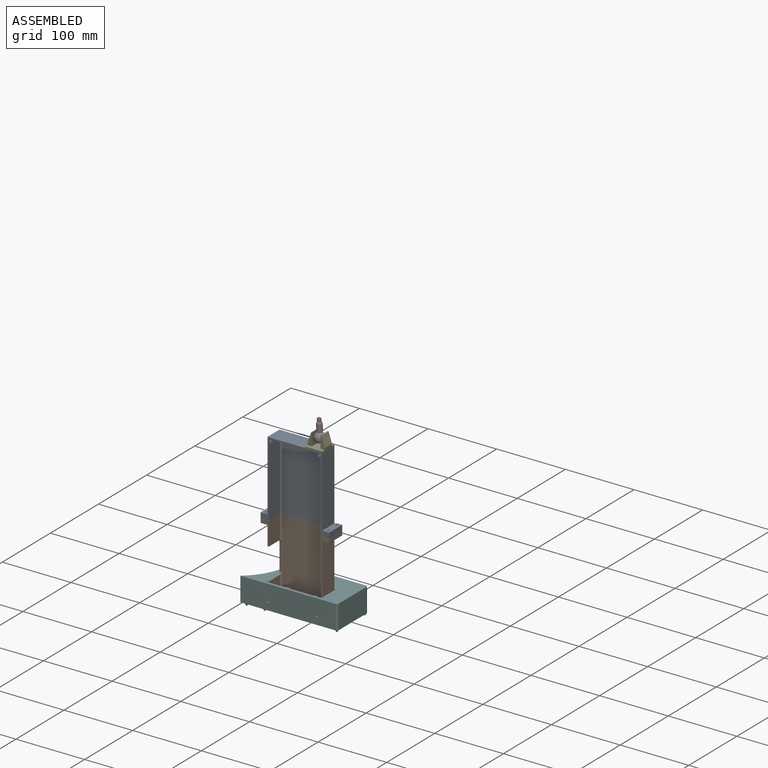
[diagram: assembled view]
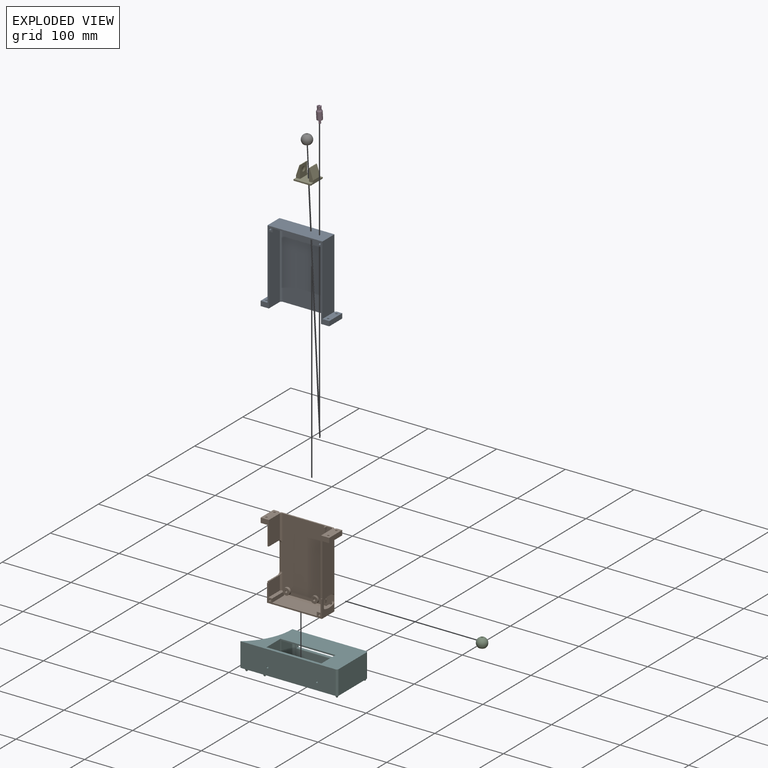
[diagram: exploded view]
GUIDED TOUR — MATED ASSEMBLY (Onshape document a57b33b33fea9fc957c43a59, AutoMate assembly a57b33b33fea9fc957c43a59_77cb5a448670c72e79acee32_9a6f02e3161a207d7895fa03_default)

This assembly has 7 components, labeled P0..P6 below (a component is one placed occurrence of a part; the same part can appear more than once), held together by 8 mates. A mate is a constraint between two components; its type names the relative motion it leaves free:
  FASTENED — locks the two components together rigidly (no relative motion),
  PLANAR — leaves sliding in the plane through the listed point (normal = the listed direction) and rotation about that normal free,
  REVOLUTE — leaves rotation about the listed axis free (a hinge).
Axis/direction vectors are unit vectors and 'through' points are millimeter coordinates, both in the assembly's world frame.

MATES
  1. PLANAR "Planar 2": P1 <-> P5, direction (0.000, 1.000, 0.000) through (-11.08, -62.43, 81.53) mm
  2. PLANAR "Planar 4": P0 <-> P1, direction (0.000, 0.000, -1.000) through (-10.81, -73.46, 134.94) mm
  3. PLANAR "Planar 5": P4 <-> P0, direction (0.000, 0.000, -1.000) through (16.40, -76.93, 243.94) mm
  4. PLANAR "Planar 3": P1 <-> P5, direction (0.000, 0.000, -1.000) through (-11.10, -77.43, 25.94) mm
  5. FASTENED "Fastened 1": P0 <-> P1, direction (0.000, 1.000, 0.000) through (-61.10, -75.93, 134.94) mm
  6. FASTENED "Fastened 2": P4 <-> P0, direction (0.000, 1.000, 0.000) through (28.90, -89.43, 243.94) mm
  7. PLANAR "Planar 1": P1 <-> P5, direction (1.000, 0.000, 0.000) through (28.90, -77.30, 81.35) mm
  8. REVOLUTE "Revolute 1": P3 <-> P6, axis (0.059, -0.014, -0.998) through (16.04, -76.56, 263.56) mm

ASSEMBLY ORDER
  1. P1 — the base component [order heuristic]
  2. P5 — core [order heuristic]
  3. P6 — core [order heuristic]
  4. P4 — core [order heuristic]
  5. P3 [order verified]
  6. P0 [order verified]
  7. P2 [order verified]
(P3 verified with a relaxed clearance tolerance: the source model stores slight part interference there.)
Order-tag legend:
  [order verified] — this step's position reverses a verified removal order: the component was checked to insert without passing through the ones already placed.
  [order heuristic] — the first 4 components form the assembly's core: parts whose collision-free extraction could not be verified, listed in mate-graph order.

Of the 7 components, 4 carry the full construction recipe — the FeatureScript program that regenerates the part's solid from scratch; the rest are supplied as boundary geometry only.
Each toured component is shown spotlighted twice — in the assembled view, then in the exploded view, where a leader line traces a displaced component back to its assembled socket (saturated green if recipe-attached, orange if geometry-only; every other component desaturated gray) — followed by its recipe or geometry summary and the mates that hold it.
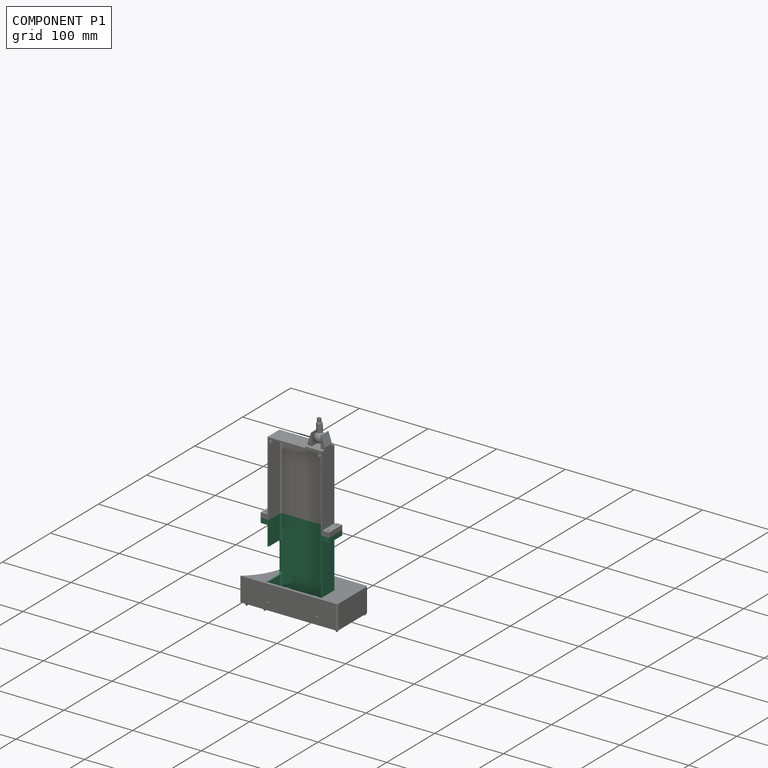
[diagram: component P1 — assembled]
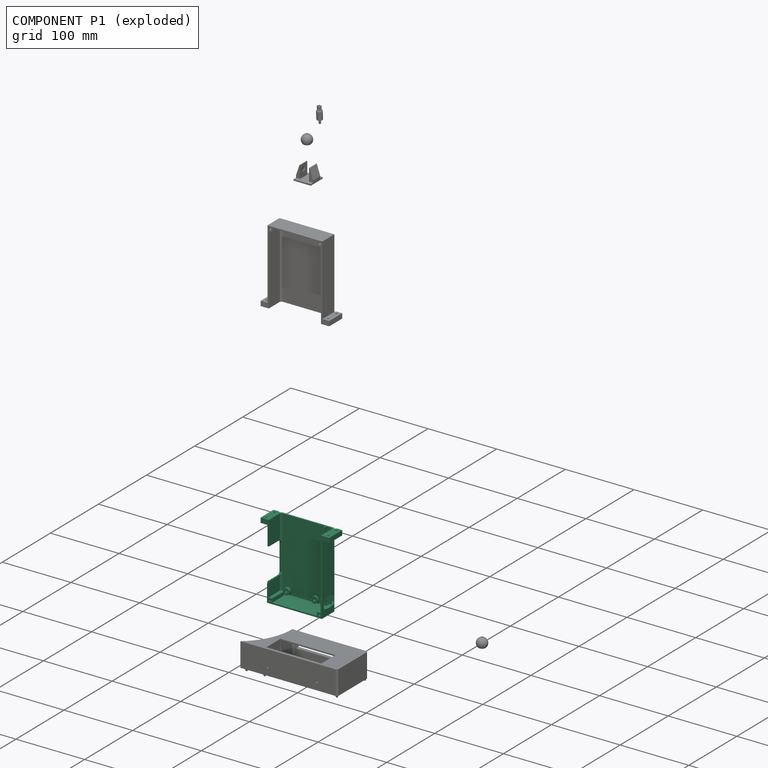
[diagram: component P1 — exploded]
COMPONENT P1 — recipe-attached (CADFS 00714998, mesh-verified: the recipe's output STEP matches this component's geometry to below the mesh-comparison resolution (tessellation chordal tolerance ~0.226 mm)).
Held by: PLANAR mate "Planar 2" to P5; PLANAR mate "Planar 4" to P0; PLANAR mate "Planar 3" to P5; FASTENED mate "Fastened 1" to P0; PLANAR mate "Planar 1" to P5.
Construction recipe (FeatureScript — the CAD program that rebuilds this solid; sketch coordinates are in the units given by the * unit suffixes, e.g. mm):

FeatureScript 1511;
import(path : "onshape/std/geometry.fs", version : "1511.0");
import(path : "onshape/std/common.fs", version : "1511.0");
const mm = millimeter;
const VERTEX = EntityType.VERTEX;
const EDGE = EntityType.EDGE;
const FACE = EntityType.FACE;
const BODY = EntityType.BODY;
function v(x, y){return vector(x, y);}
function OD(order){return orderDisambiguation(order);}
function OSD(set){return originalSetDisambiguation(set);}
function TD(topology){return topologyDisambiguation(topology);}
function TDD(query){return trueDependencyDisambiguation(query);}
function sQuery(a, b, c) {return sketchEntityQuery(a, b, c);}

annotation { "Feature Type Name" : "Feature", "Feature Type Description" : "" }
export const myFeature = defineFeature(function(context is Context, id is Id, definition is map)
    precondition{}
    {
        {
            var Q0;
            Q0=qCreatedBy(makeId("Top.planeOp"),FACE);
            var sketch = newSketch(context, id + "F0", { "sketchPlane" : qUnion([Q0])});
            skLineSegment(sketch, "E0.bottom", {"start": v(54.5, 40) * mm, "end": v(-54.5, 40) * mm});
            skLineSegment(sketch, "E0.top", {"start": v(54.5, -40) * mm, "end": v(-54.5, -40) * mm});
            skLineSegment(sketch, "E0.left", {"start": v(54.5, 40) * mm, "end": v(54.5, -40) * mm});
            skLineSegment(sketch, "E0.right", {"start": v(-54.5, 40) * mm, "end": v(-54.5, -40) * mm});
            skPoint(sketch, "E0.middle", {"position": v(0, 0) * mm});
            skSolve(sketch);
        }
        {
            var Q0;
            Q0=makeQuery(id+"F0.imprint","IMPRINT",FACE,{"disambiguationData":[TD([[makeQuery(id+"F0.imprint","IMPRINT",EDGE,{"derivedFrom":sQuery(id+"F0.wireOp",EDGE,"E0.bottom")}),1.0]])]});
            extrude(context, id + "F1", {"entities" : qUnion([Q0]), "depth" : 27 * mm, "offsetDistance" : 25 * mm});
        }
        {
            var Q0;
            Q0=makeQuery(id+"F1.opExtrude","SWEPT_FACE",FACE,{"disambiguationData":[OSD([sQuery(id+"F0.wireOp",EDGE,"E0.bottom")])]});
            var sketch = newSketch(context, id + "F2", { "sketchPlane" : qUnion([Q0])});
            skLineSegment(sketch, "E1.bottom", {"start": v(-54.5, 27) * mm, "end": v(-47.5, 27) * mm});
            skLineSegment(sketch, "E1.top", {"start": v(-54.5, 0) * mm, "end": v(-47.5, 0) * mm});
            skLineSegment(sketch, "E1.left", {"start": v(-54.5, 27) * mm, "end": v(-54.5, 0) * mm});
            skLineSegment(sketch, "E1.right", {"start": v(-47.5, 27) * mm, "end": v(-47.5, 0) * mm});
            skSolve(sketch);
        }
        {
            var Q0;
            Q0=makeQuery(id+"F2.imprint","IMPRINT",FACE,{"disambiguationData":[TD([[makeQuery(id+"F2.imprint","IMPRINT",EDGE,{"derivedFrom":sQuery(id+"F2.wireOp",EDGE,"E1.bottom")}),-1.0]])]});
            extrude(context, id + "F3", {"entities" : qUnion([Q0]), "operationType" : NewBodyOperationType.ADD, "depth" : 10 * mm, "offsetDistance" : 25 * mm});
        }
        {
            var Q0;
            Q0=makeQuery(id+"F1.opExtrude","SWEPT_FACE",FACE,{"disambiguationData":[OSD([sQuery(id+"F0.wireOp",EDGE,"E0.top")])]});
            var sketch = newSketch(context, id + "F4", { "sketchPlane" : qUnion([Q0])});
            skLineSegment(sketch, "E2.bottom", {"start": v(54.5, 27) * mm, "end": v(47.5, 27) * mm});
            skLineSegment(sketch, "E2.top", {"start": v(54.5, 0) * mm, "end": v(47.5, 0) * mm});
            skLineSegment(sketch, "E2.left", {"start": v(54.5, 27) * mm, "end": v(54.5, 0) * mm});
            skLineSegment(sketch, "E2.right", {"start": v(47.5, 27) * mm, "end": v(47.5, 0) * mm});
            skSolve(sketch);
        }
        {
            var Q0;
            Q0=qSketchRegion(id+"F4",true);
            extrude(context, id + "F5", {"entities" : qUnion([Q0]), "operationType" : NewBodyOperationType.ADD, "depth" : 10 * mm, "offsetDistance" : 25 * mm});
        }
        {
            var Q0;
            Q0=makeQuery(id+"F5.boolean.opBoolean","MERGE",FACE,{"derivedFrom":[makeQuery(id+"F3.boolean.opBoolean","MERGE",FACE,{"derivedFrom":[makeQuery(id+"F1.opExtrude","CAP_FACE",FACE,{"disambiguationData":[OSD([sQuery(id+"F0.wireOp",EDGE,"E0.bottom"),sQuery(id+"F0.wireOp",EDGE,"E0.top"),sQuery(id+"F0.wireOp",EDGE,"E0.left"),sQuery(id+"F0.wireOp",EDGE,"E0.right")])],"isStart":false}),makeQuery(id+"F3.opExtrude","SWEPT_FACE",FACE,{"disambiguationData":[OSD([sQuery(id+"F2.wireOp",EDGE,"E1.bottom")])]})]}),makeQuery(id+"F5.opExtrude","SWEPT_FACE",FACE,{"disambiguationData":[OSD([sQuery(id+"F4.wireOp",EDGE,"E2.bottom")])]})]});
            var sketch = newSketch(context, id + "F6", { "sketchPlane" : qUnion([Q0])});
            skLineSegment(sketch, "E3.0", {"start": v(-52.5, 32.5) * mm, "end": v(-52.5, -32.5) * mm});
            skLineSegment(sketch, "E3.1", {"start": v(52.5, 38) * mm, "end": v(-47, 38) * mm});
            skLineSegment(sketch, "E3.2", {"start": v(-47, -38) * mm, "end": v(54.24, -38) * mm});
            skPoint(sketch, "E4.orphan", {"position": v(49.5, 38) * mm});
            skLineSegment(sketch, "E5.top", {"start": v(-52.5, 32.5) * mm, "end": v(-47, 32.5) * mm});
            skLineSegment(sketch, "E5.right", {"start": v(-47, 38) * mm, "end": v(-47, 32.5) * mm});
            skLineSegment(sketch, "E6.top", {"start": v(-52.5, -32.5) * mm, "end": v(-47, -32.5) * mm});
            skLineSegment(sketch, "E6.right", {"start": v(-47, -38) * mm, "end": v(-47, -32.5) * mm});
            skLineSegment(sketch, "E7", {"start": v(54.24, -38) * mm, "end": v(54.5, -38) * mm});
            skLineSegment(sketch, "E8", {"start": v(52.5, 38) * mm, "end": v(54.5, 38) * mm});
            skSolve(sketch);
        }
        {
            var Q0;
            Q0=makeQuery(id+"F6.imprint","IMPRINT",FACE,{"disambiguationData":[TD([[makeQuery(id+"F6.imprint","IMPRINT",EDGE,{"derivedFrom":sQuery(id+"F6.wireOp",EDGE,"E3.0")}),1.0]])]});
            extrude(context, id + "F7", {"entities" : qUnion([Q0]), "operationType" : NewBodyOperationType.REMOVE, "oppositeDirection" : true, "depth" : 25 * mm, "offsetDistance" : 25 * mm});
        }
        {
            var Q0;
            Q0=makeQuery(id+"F5.boolean.opBoolean","MERGE",FACE,{"derivedFrom":[makeQuery(id+"F3.boolean.opBoolean","MERGE",FACE,{"derivedFrom":[makeQuery(id+"F1.opExtrude","CAP_FACE",FACE,{"disambiguationData":[OSD([sQuery(id+"F0.wireOp",EDGE,"E0.bottom"),sQuery(id+"F0.wireOp",EDGE,"E0.top"),sQuery(id+"F0.wireOp",EDGE,"E0.left"),sQuery(id+"F0.wireOp",EDGE,"E0.right")])],"isStart":true}),makeQuery(id+"F3.opExtrude","SWEPT_FACE",FACE,{"disambiguationData":[OSD([sQuery(id+"F2.wireOp",EDGE,"E1.top")])]})]}),makeQuery(id+"F5.opExtrude","SWEPT_FACE",FACE,{"disambiguationData":[OSD([sQuery(id+"F4.wireOp",EDGE,"E2.top")])]})]});
            var sketch = newSketch(context, id + "F8", { "sketchPlane" : qUnion([Q0])});
            skLineSegment(sketch, "E9.bottom", {"start": v(54.5, 40) * mm, "end": v(-45.5, 40) * mm, "construction": true});
            skLineSegment(sketch, "E9.top", {"start": v(54.5, -40) * mm, "end": v(-45.5, -40) * mm, "construction": true});
            skLineSegment(sketch, "E9.left", {"start": v(54.5, 40) * mm, "end": v(54.5, -40) * mm, "construction": true});
            skLineSegment(sketch, "E9.right", {"start": v(-45.5, 40) * mm, "end": v(-45.5, -40) * mm, "construction": true});
            skLineSegment(sketch, "E10", {"start": v(-45.5, 40) * mm, "end": v(-45.5, 28) * mm, "construction": true});
            skLineSegment(sketch, "E11", {"start": v(-45.5, 40) * mm, "end": v(-45.5, -12.8) * mm, "construction": true});
            skCircle(sketch, "E12", {"center": v(-45.5, 28) * mm, "radius": 1.6 * mm});
            skCircle(sketch, "E13", {"center": v(-45.5, -12.8) * mm, "radius": 1.6 * mm});
            skCircle(sketch, "E14", {"center": v(-45.5, 28) * mm, "radius": 5 * mm});
            skCircle(sketch, "E15", {"center": v(-45.5, -12.8) * mm, "radius": 5 * mm});
            skSolve(sketch);
        }
        {
            var Q0;
            Q0=sQuery(id+"F8.wireOp",VERTEX,"E10.end");
            var Q1;
            Q1=sQuery(id+"F8.wireOp",VERTEX,"E11.end");
            var Q2;
            Q2=makeQuery(id+"F1.opExtrude","SWEPT_BODY",BODY,{"disambiguationData":[OSD([sQuery(id+"F0.wireOp",EDGE,"E0.bottom"),sQuery(id+"F0.wireOp",EDGE,"E0.top"),sQuery(id+"F0.wireOp",EDGE,"E0.left"),sQuery(id+"F0.wireOp",EDGE,"E0.right")])]});
            hole(context, id + "F9", {"style" : HoleStyle.SIMPLE, "endStyle" : HoleEndStyle.THROUGH, "holeDiameter" : 3.2 * mm, "majorDiameter" : 5 * mm, "isTappedThrough" : true, "tappedDepth" : 12 * mm, "tapClearance" : 3, "startFromSketch" : true, "locations" : qUnion([Q0, Q1]), "scope" : qUnion([Q2])});
        }
        {
            var Q0;
            Q0=makeQuery(id+"F7.boolean.opBoolean","COPY",FACE,{"derivedFrom":makeQuery(id+"F7.opExtrude","CAP_FACE",FACE,{"disambiguationData":[OSD([sQuery(id+"F0.wireOp",EDGE,"E0.left"),sQuery(id+"F2.wireOp",EDGE,"E1.bottom"),sQuery(id+"F2.wireOp",EDGE,"E1.left"),sQuery(id+"F4.wireOp",EDGE,"E2.bottom"),sQuery(id+"F4.wireOp",EDGE,"E2.left"),sQuery(id+"F6.wireOp",EDGE,"E3.0"),sQuery(id+"F6.wireOp",EDGE,"E3.1"),sQuery(id+"F6.wireOp",EDGE,"E3.2"),sQuery(id+"F6.wireOp",EDGE,"E5.top"),sQuery(id+"F6.wireOp",EDGE,"E5.right"),sQuery(id+"F6.wireOp",EDGE,"E6.top"),sQuery(id+"F6.wireOp",EDGE,"E6.right"),sQuery(id+"F6.wireOp",EDGE,"E7"),sQuery(id+"F6.wireOp",EDGE,"E8")])],"isStart":false})});
            var sketch = newSketch(context, id + "F10", { "sketchPlane" : qUnion([Q0])});
            skLineSegment(sketch, "E16.bottom", {"start": v(54.5, 38) * mm, "end": v(-47, 38) * mm, "construction": true});
            skLineSegment(sketch, "E16.top", {"start": v(54.5, 29) * mm, "end": v(-47, 29) * mm, "construction": true});
            skLineSegment(sketch, "E16.left", {"start": v(54.5, 38) * mm, "end": v(54.5, 29) * mm, "construction": true});
            skLineSegment(sketch, "E16.right", {"start": v(-47, 38) * mm, "end": v(-47, 29) * mm, "construction": true});
            skLineSegment(sketch, "E17", {"start": v(-52.5, 29) * mm, "end": v(-45.5, 29) * mm, "construction": true});
            skLineSegment(sketch, "E18.bottom", {"start": v(-45.5, 29) * mm, "end": v(54.5, 29) * mm});
            skLineSegment(sketch, "E18.top", {"start": v(-45.5, 27) * mm, "end": v(54.5, 27) * mm});
            skLineSegment(sketch, "E18.left", {"start": v(-45.5, 29) * mm, "end": v(-45.5, 27) * mm});
            skLineSegment(sketch, "E18.right", {"start": v(54.5, 29) * mm, "end": v(54.5, 27) * mm});
            skSolve(sketch);
        }
        {
            var Q0;
            Q0=qSketchRegion(id+"F10",true);
            extrude(context, id + "F11", {"entities" : qUnion([Q0]), "operationType" : NewBodyOperationType.ADD, "depth" : 3.9 * mm, "offsetDistance" : 25 * mm});
        }
        {
            var Q0;
            Q0=makeQuery(id+"F11.opExtrude","SWEPT_FACE",FACE,{"disambiguationData":[OSD([sQuery(id+"F10.wireOp",EDGE,"E18.top")])]});
            var sketch = newSketch(context, id + "F12", { "sketchPlane" : qUnion([Q0])});
            skLineSegment(sketch, "E19.bottom", {"start": v(54.5, 5.9) * mm, "end": v(-45.5, 5.9) * mm, "construction": true});
            skLineSegment(sketch, "E19.top", {"start": v(54.5, 3.37) * mm, "end": v(-45.5, 3.37) * mm, "construction": true});
            skLineSegment(sketch, "E19.left", {"start": v(54.5, 5.9) * mm, "end": v(54.5, 3.37) * mm, "construction": true});
            skLineSegment(sketch, "E19.right", {"start": v(-45.5, 5.9) * mm, "end": v(-45.5, 3.37) * mm, "construction": true});
            skLineSegment(sketch, "E20", {"start": v(54.5, 3.37) * mm, "end": v(48.75, 3.37) * mm, "construction": true});
            skLineSegment(sketch, "E21.bottom", {"start": v(50.5, 4.17) * mm, "end": v(47, 4.17) * mm});
            skLineSegment(sketch, "E21.top", {"start": v(50.5, 2.57) * mm, "end": v(47, 2.57) * mm});
            skPoint(sketch, "E21.middle", {"position": v(48.75, 3.37) * mm});
            skArc(sketch, "E22", {"start": v(47, 4.17) * mm, "mid": v(46.2, 3.37) * mm, "end": v(47, 2.57) * mm});
            skArc(sketch, "E23", {"start": v(50.5, 2.57) * mm, "mid": v(51.3, 3.37) * mm, "end": v(50.5, 4.17) * mm});
            skLineSegment(sketch, "E24", {"start": v(48.75, 3.37) * mm, "end": v(37.75, 3.37) * mm, "construction": true});
            skLineSegment(sketch, "E25.bottom", {"start": v(39.5, 4.17) * mm, "end": v(36, 4.17) * mm});
            skLineSegment(sketch, "E25.top", {"start": v(39.5, 2.57) * mm, "end": v(36, 2.57) * mm});
            skPoint(sketch, "E25.middle", {"position": v(37.75, 3.37) * mm});
            skArc(sketch, "E26", {"start": v(36, 4.17) * mm, "mid": v(35.2, 3.37) * mm, "end": v(36, 2.57) * mm});
            skArc(sketch, "E27", {"start": v(39.5, 2.57) * mm, "mid": v(40.3, 3.37) * mm, "end": v(39.5, 4.17) * mm});
            skLineSegment(sketch, "E28", {"start": v(37.75, 3.37) * mm, "end": v(26.75, 3.37) * mm, "construction": true});
            skLineSegment(sketch, "E29", {"start": v(26.75, 3.37) * mm, "end": v(15.75, 3.37) * mm, "construction": true});
            skLineSegment(sketch, "E30", {"start": v(15.75, 3.37) * mm, "end": v(4.75, 3.37) * mm, "construction": true});
            skLineSegment(sketch, "E31", {"start": v(4.75, 3.37) * mm, "end": v(-6.25, 3.37) * mm, "construction": true});
            skLineSegment(sketch, "E32", {"start": v(-6.25, 3.37) * mm, "end": v(-17.25, 3.37) * mm, "construction": true});
            skLineSegment(sketch, "E33", {"start": v(-17.25, 3.37) * mm, "end": v(-28.25, 3.37) * mm, "construction": true});
            skLineSegment(sketch, "E34", {"start": v(-28.25, 3.37) * mm, "end": v(-39.25, 3.37) * mm, "construction": true});
            skLineSegment(sketch, "E35.bottom", {"start": v(29.03, 4.17) * mm, "end": v(25.53, 4.17) * mm});
            skLineSegment(sketch, "E35.top", {"start": v(29.03, 2.57) * mm, "end": v(25.53, 2.57) * mm});
            skPoint(sketch, "E35.middle", {"position": v(27.28, 3.37) * mm});
            skArc(sketch, "E36", {"start": v(25.53, 4.17) * mm, "mid": v(24.73, 3.37) * mm, "end": v(25.53, 2.57) * mm});
            skArc(sketch, "E37", {"start": v(29.03, 2.57) * mm, "mid": v(29.83, 3.37) * mm, "end": v(29.03, 4.17) * mm});
            skLineSegment(sketch, "E38.bottom", {"start": v(18.03, 4.17) * mm, "end": v(14.53, 4.17) * mm});
            skLineSegment(sketch, "E38.top", {"start": v(18.03, 2.57) * mm, "end": v(14.53, 2.57) * mm});
            skPoint(sketch, "E38.middle", {"position": v(16.28, 3.37) * mm});
            skArc(sketch, "E39", {"start": v(14.53, 4.17) * mm, "mid": v(13.73, 3.37) * mm, "end": v(14.53, 2.57) * mm});
            skArc(sketch, "E40", {"start": v(18.03, 2.57) * mm, "mid": v(18.83, 3.37) * mm, "end": v(18.03, 4.17) * mm});
            skLineSegment(sketch, "E41.bottom", {"start": v(7.03, 4.17) * mm, "end": v(3.53, 4.17) * mm});
            skLineSegment(sketch, "E41.top", {"start": v(7.03, 2.57) * mm, "end": v(3.53, 2.57) * mm});
            skPoint(sketch, "E41.middle", {"position": v(5.28, 3.37) * mm});
            skArc(sketch, "E42", {"start": v(3.53, 4.17) * mm, "mid": v(2.73, 3.37) * mm, "end": v(3.53, 2.57) * mm});
            skArc(sketch, "E43", {"start": v(7.03, 2.57) * mm, "mid": v(7.83, 3.37) * mm, "end": v(7.03, 4.17) * mm});
            skLineSegment(sketch, "E44.bottom", {"start": v(-3.97, 4.17) * mm, "end": v(-7.47, 4.17) * mm});
            skLineSegment(sketch, "E44.top", {"start": v(-3.97, 2.57) * mm, "end": v(-7.47, 2.57) * mm});
            skPoint(sketch, "E44.middle", {"position": v(-5.72, 3.37) * mm});
            skArc(sketch, "E45", {"start": v(-7.47, 4.17) * mm, "mid": v(-8.27, 3.37) * mm, "end": v(-7.47, 2.57) * mm});
            skArc(sketch, "E46", {"start": v(-3.97, 2.57) * mm, "mid": v(-3.17, 3.37) * mm, "end": v(-3.97, 4.17) * mm});
            skLineSegment(sketch, "E47.bottom", {"start": v(-14.97, 4.17) * mm, "end": v(-18.47, 4.17) * mm});
            skLineSegment(sketch, "E47.top", {"start": v(-14.97, 2.57) * mm, "end": v(-18.47, 2.57) * mm});
            skPoint(sketch, "E47.middle", {"position": v(-16.72, 3.37) * mm});
            skArc(sketch, "E48", {"start": v(-18.47, 4.17) * mm, "mid": v(-19.27, 3.37) * mm, "end": v(-18.47, 2.57) * mm});
            skArc(sketch, "E49", {"start": v(-14.97, 2.57) * mm, "mid": v(-14.17, 3.37) * mm, "end": v(-14.97, 4.17) * mm});
            skLineSegment(sketch, "E50.bottom", {"start": v(-25.97, 4.17) * mm, "end": v(-29.47, 4.17) * mm});
            skLineSegment(sketch, "E50.top", {"start": v(-25.97, 2.57) * mm, "end": v(-29.47, 2.57) * mm});
            skPoint(sketch, "E50.middle", {"position": v(-27.72, 3.37) * mm});
            skArc(sketch, "E51", {"start": v(-29.47, 4.17) * mm, "mid": v(-30.27, 3.37) * mm, "end": v(-29.47, 2.57) * mm});
            skArc(sketch, "E52", {"start": v(-25.97, 2.57) * mm, "mid": v(-25.17, 3.37) * mm, "end": v(-25.97, 4.17) * mm});
            skLineSegment(sketch, "E53.bottom", {"start": v(-36.97, 4.17) * mm, "end": v(-40.47, 4.17) * mm});
            skLineSegment(sketch, "E53.top", {"start": v(-36.97, 2.57) * mm, "end": v(-40.47, 2.57) * mm});
            skPoint(sketch, "E53.middle", {"position": v(-38.72, 3.37) * mm});
            skArc(sketch, "E54", {"start": v(-40.47, 4.17) * mm, "mid": v(-41.27, 3.37) * mm, "end": v(-40.47, 2.57) * mm});
            skArc(sketch, "E55", {"start": v(-36.97, 2.57) * mm, "mid": v(-36.17, 3.37) * mm, "end": v(-36.97, 4.17) * mm});
            skSolve(sketch);
        }
        {
            var Q0;
            Q0=makeQuery(id+"F12.imprint","IMPRINT",FACE,{"disambiguationData":[TD([[makeQuery(id+"F12.imprint","IMPRINT",EDGE,{"derivedFrom":sQuery(id+"F12.wireOp",EDGE,"E53.bottom")}),1.0]])]});
            var Q1;
            Q1=makeQuery(id+"F12.imprint","IMPRINT",FACE,{"disambiguationData":[TD([[makeQuery(id+"F12.imprint","IMPRINT",EDGE,{"derivedFrom":sQuery(id+"F12.wireOp",EDGE,"E50.bottom")}),1.0]])]});
            var Q2;
            Q2=makeQuery(id+"F12.imprint","IMPRINT",FACE,{"disambiguationData":[TD([[makeQuery(id+"F12.imprint","IMPRINT",EDGE,{"derivedFrom":sQuery(id+"F12.wireOp",EDGE,"E47.bottom")}),1.0]])]});
            var Q3;
            Q3=makeQuery(id+"F12.imprint","IMPRINT",FACE,{"disambiguationData":[TD([[makeQuery(id+"F12.imprint","IMPRINT",EDGE,{"derivedFrom":sQuery(id+"F12.wireOp",EDGE,"E44.bottom")}),1.0]])]});
            var Q4;
            Q4=makeQuery(id+"F12.imprint","IMPRINT",FACE,{"disambiguationData":[TD([[makeQuery(id+"F12.imprint","IMPRINT",EDGE,{"derivedFrom":sQuery(id+"F12.wireOp",EDGE,"E41.bottom")}),1.0]])]});
            var Q5;
            Q5=makeQuery(id+"F12.imprint","IMPRINT",FACE,{"disambiguationData":[TD([[makeQuery(id+"F12.imprint","IMPRINT",EDGE,{"derivedFrom":sQuery(id+"F12.wireOp",EDGE,"E38.bottom")}),1.0]])]});
            var Q6;
            Q6=makeQuery(id+"F12.imprint","IMPRINT",FACE,{"disambiguationData":[TD([[makeQuery(id+"F12.imprint","IMPRINT",EDGE,{"derivedFrom":sQuery(id+"F12.wireOp",EDGE,"E35.bottom")}),1.0]])]});
            var Q7;
            Q7=makeQuery(id+"F12.imprint","IMPRINT",FACE,{"disambiguationData":[TD([[makeQuery(id+"F12.imprint","IMPRINT",EDGE,{"derivedFrom":sQuery(id+"F12.wireOp",EDGE,"E25.bottom")}),1.0]])]});
            var Q8;
            Q8=makeQuery(id+"F12.imprint","IMPRINT",FACE,{"disambiguationData":[TD([[makeQuery(id+"F12.imprint","IMPRINT",EDGE,{"derivedFrom":sQuery(id+"F12.wireOp",EDGE,"E21.bottom")}),1.0]])]});
            extrude(context, id + "F13", {"entities" : qUnion([Q0, Q1, Q2, Q3, Q4, Q5, Q6, Q7, Q8]), "operationType" : NewBodyOperationType.REMOVE, "endBound" : BoundingType.UP_TO_NEXT, "oppositeDirection" : true, "depth" : 25 * mm, "offsetDistance" : 25 * mm});
        }
        {
            var Q0;
            Q0=makeQuery(id+"F7.boolean.opBoolean","COPY",FACE,{"derivedFrom":makeQuery(id+"F7.opExtrude","CAP_FACE",FACE,{"disambiguationData":[OSD([sQuery(id+"F0.wireOp",EDGE,"E0.left"),sQuery(id+"F2.wireOp",EDGE,"E1.bottom"),sQuery(id+"F2.wireOp",EDGE,"E1.left"),sQuery(id+"F4.wireOp",EDGE,"E2.bottom"),sQuery(id+"F4.wireOp",EDGE,"E2.left"),sQuery(id+"F6.wireOp",EDGE,"E3.0"),sQuery(id+"F6.wireOp",EDGE,"E3.1"),sQuery(id+"F6.wireOp",EDGE,"E3.2"),sQuery(id+"F6.wireOp",EDGE,"E5.top"),sQuery(id+"F6.wireOp",EDGE,"E5.right"),sQuery(id+"F6.wireOp",EDGE,"E6.top"),sQuery(id+"F6.wireOp",EDGE,"E6.right"),sQuery(id+"F6.wireOp",EDGE,"E7"),sQuery(id+"F6.wireOp",EDGE,"E8")])],"isStart":false})});
            var sketch = newSketch(context, id + "F14", { "sketchPlane" : qUnion([Q0])});
            skCircle(sketch, "E56", {"center": v(-45.5, 12.8) * mm, "radius": 5 * mm});
            skCircle(sketch, "E57", {"center": v(-45.5, -28) * mm, "radius": 5 * mm});
            skCircle(sketch, "E58", {"center": v(-45.5, -28) * mm, "radius": 1.6 * mm});
            skCircle(sketch, "E59", {"center": v(-45.5, 12.8) * mm, "radius": 1.6 * mm});
            skSolve(sketch);
        }
        {
            var Q0;
            Q0=qSketchRegion(id+"F14",true);
            extrude(context, id + "F15", {"entities" : qUnion([Q0]), "operationType" : NewBodyOperationType.ADD, "depth" : 3.4 * mm, "offsetDistance" : 25 * mm});
        }
        {
            var Q0;
            Q0=makeQuery(id+"F7.boolean.opBoolean","COPY",EDGE,{"derivedFrom":makeQuery(id+"F7.opExtrude","CAP_EDGE",EDGE,{"disambiguationData":[OSD([sQuery(id+"F6.wireOp",EDGE,"E3.0")])],"isStart":false})});
            var Q1;
            Q1=makeQuery(id+"F1.opExtrude","CAP_EDGE",EDGE,{"disambiguationData":[OSD([sQuery(id+"F0.wireOp",EDGE,"E0.right")])],"isStart":true});
            var Q2;
            Q2=makeQuery(id+"F1.opExtrude","CAP_EDGE",EDGE,{"disambiguationData":[OSD([sQuery(id+"F0.wireOp",EDGE,"E0.top")])],"isStart":true});
            var Q3;
            Q3=makeQuery(id+"F1.opExtrude","CAP_EDGE",EDGE,{"disambiguationData":[OSD([sQuery(id+"F0.wireOp",EDGE,"E0.bottom")])],"isStart":true});
            var Q4;
            Q4=makeQuery(id+"F7.boolean.opBoolean","COPY",EDGE,{"derivedFrom":makeQuery(id+"F7.opExtrude","CAP_EDGE",EDGE,{"disambiguationData":[OSD([sQuery(id+"F6.wireOp",EDGE,"E3.1"),sQuery(id+"F6.wireOp",EDGE,"E8")])],"isStart":false})});
            chamfer(context, id + "F16", {"entities" : qUnion([Q0, Q1, Q2, Q3, Q4]), "width" : 2 * mm, "tangentPropagation" : true});
        }
        {
            var Q0;
            Q0=makeQuery(id+"F11.boolean.opBoolean","MERGE",FACE,{"derivedFrom":[makeQuery(id+"F5.boolean.opBoolean","MERGE",FACE,{"derivedFrom":[makeQuery(id+"F3.boolean.opBoolean","MERGE",FACE,{"derivedFrom":[makeQuery(id+"F1.opExtrude","SWEPT_FACE",FACE,{"disambiguationData":[OSD([sQuery(id+"F0.wireOp",EDGE,"E0.left")])]}),makeQuery(id+"F3.opExtrude","SWEPT_FACE",FACE,{"disambiguationData":[OSD([sQuery(id+"F2.wireOp",EDGE,"E1.left")])]})]}),makeQuery(id+"F5.opExtrude","SWEPT_FACE",FACE,{"disambiguationData":[OSD([sQuery(id+"F4.wireOp",EDGE,"E2.left")])]})]}),makeQuery(id+"F11.opExtrude","SWEPT_FACE",FACE,{"disambiguationData":[OSD([sQuery(id+"F10.wireOp",EDGE,"E18.right")])]})]});
            var sketch = newSketch(context, id + "F17", { "sketchPlane" : qUnion([Q0])});
            skLineSegment(sketch, "E60.bottom", {"start": v(38, 0) * mm, "end": v(42, 0) * mm});
            skLineSegment(sketch, "E60.top", {"start": v(38, 2) * mm, "end": v(42, 2) * mm, "construction": true});
            skLineSegment(sketch, "E60.left", {"start": v(38, 0) * mm, "end": v(38, 2) * mm, "construction": true});
            skLineSegment(sketch, "E60.right", {"start": v(42, 0) * mm, "end": v(42, 2) * mm, "construction": true});
            skLineSegment(sketch, "E61", {"start": v(42, 0) * mm, "end": v(40, 2) * mm});
            skLineSegment(sketch, "E62", {"start": v(40, 2) * mm, "end": v(38, 0) * mm});
            skLineSegment(sketch, "E63.bottom", {"start": v(-38, 0) * mm, "end": v(-42.01, 0) * mm});
            skLineSegment(sketch, "E63.top", {"start": v(-38, 2) * mm, "end": v(-42.01, 2) * mm, "construction": true});
            skLineSegment(sketch, "E63.left", {"start": v(-38, 0) * mm, "end": v(-38, 2) * mm, "construction": true});
            skLineSegment(sketch, "E63.right", {"start": v(-42.01, 0) * mm, "end": v(-42.01, 2) * mm, "construction": true});
            skLineSegment(sketch, "E64", {"start": v(-38, 0) * mm, "end": v(-40, 2) * mm});
            skLineSegment(sketch, "E65", {"start": v(-40, 2) * mm, "end": v(-42.01, 0) * mm});
            skSolve(sketch);
        }
        {
            var Q0;
            Q0=qSketchRegion(id+"F17",true);
            extrude(context, id + "F18", {"entities" : qUnion([Q0]), "operationType" : NewBodyOperationType.REMOVE, "oppositeDirection" : true, "depth" : 7 * mm, "offsetDistance" : 25 * mm});
        }
        {
            var Q0;
            Q0=makeQuery(id+"F3.opExtrude","SWEPT_FACE",FACE,{"disambiguationData":[OSD([sQuery(id+"F2.wireOp",EDGE,"E1.right")])]});
            var sketch = newSketch(context, id + "F19", { "sketchPlane" : qUnion([Q0])});
            skLineSegment(sketch, "E66.bottom", {"start": v(-50, 27) * mm, "end": v(-45, 27) * mm, "construction": true});
            skLineSegment(sketch, "E66.top", {"start": v(-50, 22) * mm, "end": v(-45, 22) * mm, "construction": true});
            skLineSegment(sketch, "E66.left", {"start": v(-50, 27) * mm, "end": v(-50, 22) * mm, "construction": true});
            skLineSegment(sketch, "E66.right", {"start": v(-45, 27) * mm, "end": v(-45, 22) * mm, "construction": true});
            skLineSegment(sketch, "E67.left", {"start": v(-50, 27) * mm, "end": v(-50, 8.94) * mm, "construction": true});
            skLineSegment(sketch, "E68.bottom", {"start": v(-50, 22) * mm, "end": v(-45, 22) * mm});
            skLineSegment(sketch, "E68.top", {"start": v(-50, 5) * mm, "end": v(-45, 5) * mm, "construction": true});
            skLineSegment(sketch, "E68.left", {"start": v(-50, 22) * mm, "end": v(-50, 5) * mm, "construction": true});
            skLineSegment(sketch, "E68.right", {"start": v(-45, 22) * mm, "end": v(-45, 5) * mm, "construction": true});
            skSolve(sketch);
        }
        {
            var Q0;
            Q0=sQuery(id+"F19.wireOp",VERTEX,"E66.right.end");
            var Q1;
            Q1=sQuery(id+"F19.wireOp",VERTEX,"E68.right.end");
            var Q2;
            Q2=makeQuery(id+"F1.opExtrude","SWEPT_BODY",BODY,{"disambiguationData":[OSD([sQuery(id+"F0.wireOp",EDGE,"E0.bottom"),sQuery(id+"F0.wireOp",EDGE,"E0.top"),sQuery(id+"F0.wireOp",EDGE,"E0.left"),sQuery(id+"F0.wireOp",EDGE,"E0.right")])]});
            hole(context, id + "F20", {"style" : HoleStyle.SIMPLE, "endStyle" : HoleEndStyle.THROUGH, "holeDiameter" : 3 * mm, "majorDiameter" : 5 * mm, "isTappedThrough" : true, "tappedDepth" : 12 * mm, "tapClearance" : 3, "startFromSketch" : true, "locations" : qUnion([Q0, Q1]), "scope" : qUnion([Q2])});
        }
        {
            var Q0;
            Q0=makeQuery(id+"F5.opExtrude","SWEPT_FACE",FACE,{"disambiguationData":[OSD([sQuery(id+"F4.wireOp",EDGE,"E2.right")])]});
            var sketch = newSketch(context, id + "F21", { "sketchPlane" : qUnion([Q0])});
            skLineSegment(sketch, "E69.bottom", {"start": v(50, 27) * mm, "end": v(45, 27) * mm, "construction": true});
            skLineSegment(sketch, "E69.top", {"start": v(50, 22) * mm, "end": v(45, 22) * mm, "construction": true});
            skLineSegment(sketch, "E69.left", {"start": v(50, 27) * mm, "end": v(50, 22) * mm, "construction": true});
            skLineSegment(sketch, "E69.right", {"start": v(45, 27) * mm, "end": v(45, 22) * mm, "construction": true});
            skLineSegment(sketch, "E70.top", {"start": v(50, 5) * mm, "end": v(45, 5) * mm, "construction": true});
            skLineSegment(sketch, "E70.left", {"start": v(50, 22) * mm, "end": v(50, 5) * mm, "construction": true});
            skLineSegment(sketch, "E70.right", {"start": v(45, 22) * mm, "end": v(45, 5) * mm, "construction": true});
            skSolve(sketch);
        }
        {
            var Q0;
            Q0=sQuery(id+"F21.wireOp",VERTEX,"E69.top.end");
            var Q1;
            Q1=sQuery(id+"F21.wireOp",VERTEX,"E70.top.end");
            var Q2;
            Q2=makeQuery(id+"F1.opExtrude","SWEPT_BODY",BODY,{"disambiguationData":[OSD([sQuery(id+"F0.wireOp",EDGE,"E0.bottom"),sQuery(id+"F0.wireOp",EDGE,"E0.top"),sQuery(id+"F0.wireOp",EDGE,"E0.left"),sQuery(id+"F0.wireOp",EDGE,"E0.right")])]});
            hole(context, id + "F22", {"style" : HoleStyle.SIMPLE, "endStyle" : HoleEndStyle.THROUGH, "holeDiameter" : 3 * mm, "majorDiameter" : 5 * mm, "isTappedThrough" : true, "tappedDepth" : 12 * mm, "tapClearance" : 3, "startFromSketch" : true, "locations" : qUnion([Q0, Q1]), "scope" : qUnion([Q2])});
        }
        {
            var Q0;
            Q0=makeQuery(id+"F1.opExtrude","SWEPT_BODY",BODY,{"disambiguationData":[OSD([sQuery(id+"F0.wireOp",EDGE,"E0.bottom"),sQuery(id+"F0.wireOp",EDGE,"E0.top"),sQuery(id+"F0.wireOp",EDGE,"E0.left"),sQuery(id+"F0.wireOp",EDGE,"E0.right")])]});
            var Q1;
            Q1=makeQuery(id+"F11.boolean.opBoolean","MERGE",FACE,{"derivedFrom":[makeQuery(id+"F5.boolean.opBoolean","MERGE",FACE,{"derivedFrom":[makeQuery(id+"F3.boolean.opBoolean","MERGE",FACE,{"derivedFrom":[makeQuery(id+"F1.opExtrude","SWEPT_FACE",FACE,{"disambiguationData":[OSD([sQuery(id+"F0.wireOp",EDGE,"E0.left")])]}),makeQuery(id+"F3.opExtrude","SWEPT_FACE",FACE,{"disambiguationData":[OSD([sQuery(id+"F2.wireOp",EDGE,"E1.left")])]})]}),makeQuery(id+"F5.opExtrude","SWEPT_FACE",FACE,{"disambiguationData":[OSD([sQuery(id+"F4.wireOp",EDGE,"E2.left")])]})]}),makeQuery(id+"F11.opExtrude","SWEPT_FACE",FACE,{"disambiguationData":[OSD([sQuery(id+"F10.wireOp",EDGE,"E18.right")])]})]});
            mirror(context, id + "F23", {"entities" : qUnion([Q0]), "mirrorPlane" : qUnion([Q1])});
        }
        {
            var Q0;
            Q0=makeQuery(id+"F1.opExtrude","SWEPT_BODY",BODY,{"disambiguationData":[OSD([sQuery(id+"F0.wireOp",EDGE,"E0.bottom"),sQuery(id+"F0.wireOp",EDGE,"E0.top"),sQuery(id+"F0.wireOp",EDGE,"E0.left"),sQuery(id+"F0.wireOp",EDGE,"E0.right")])]});
            deleteBodies(context, id + "F24", {"entities" : qUnion([Q0])});
        }
        {
            var Q0;
            Q0=makeQuery(id+"F23.opPattern","COPY",FACE,{"derivedFrom":makeQuery(id+"F5.boolean.opBoolean","MERGE",FACE,{"derivedFrom":[makeQuery(id+"F3.boolean.opBoolean","MERGE",FACE,{"derivedFrom":[makeQuery(id+"F1.opExtrude","CAP_FACE",FACE,{"disambiguationData":[OSD([sQuery(id+"F0.wireOp",EDGE,"E0.bottom"),sQuery(id+"F0.wireOp",EDGE,"E0.top"),sQuery(id+"F0.wireOp",EDGE,"E0.left"),sQuery(id+"F0.wireOp",EDGE,"E0.right")])],"isStart":false}),makeQuery(id+"F3.opExtrude","SWEPT_FACE",FACE,{"disambiguationData":[OSD([sQuery(id+"F2.wireOp",EDGE,"E1.bottom")])]})]}),makeQuery(id+"F5.opExtrude","SWEPT_FACE",FACE,{"disambiguationData":[OSD([sQuery(id+"F4.wireOp",EDGE,"E2.bottom")])]})]}),"instanceName":"1"});
            var sketch = newSketch(context, id + "F25", { "sketchPlane" : qUnion([Q0])});
            skLineSegment(sketch, "E71.bottom", {"start": v(163.5, -40) * mm, "end": v(137.5, -40) * mm, "construction": true});
            skLineSegment(sketch, "E71.top", {"start": v(163.5, -40) * mm, "end": v(137.5, -40) * mm, "construction": true});
            skLineSegment(sketch, "E71.left", {"start": v(163.5, -40) * mm, "end": v(163.5, -40) * mm});
            skLineSegment(sketch, "E71.right", {"start": v(137.5, -40) * mm, "end": v(137.5, -40) * mm});
            skLineSegment(sketch, "E72.bottom", {"start": v(163.5, 40) * mm, "end": v(137.5, 40) * mm, "construction": true});
            skLineSegment(sketch, "E72.top", {"start": v(163.5, 40) * mm, "end": v(137.5, 40) * mm, "construction": true});
            skLineSegment(sketch, "E72.left", {"start": v(163.5, 40) * mm, "end": v(163.5, 40) * mm});
            skLineSegment(sketch, "E72.right", {"start": v(137.5, 40) * mm, "end": v(137.5, 40) * mm});
            skLineSegment(sketch, "E73", {"start": v(137.5, 40) * mm, "end": v(137.5, 38) * mm});
            skPoint(sketch, "E73.endSnap0", {"position": v(105.25, 38) * mm});
            skLineSegment(sketch, "E74", {"start": v(137.5, -40) * mm, "end": v(137.5, -38) * mm});
            skSolve(sketch);
        }
        {
            var Q0;
            Q0 = qSketchRegion(id + "F25", true);
            var Q1;
            {var subQ4=sQuery(id+"F25.wireOp",EDGE,"E73");Q1=makeQuery(id+"F25.imprint","IMPRINT",FACE,{"disambiguationData":[TD([[makeQuery(id+"F25.imprint","IMPRINT",EDGE,{"derivedFrom":subQ4}),1.0]])]});}
            extrude(context, id + "F26", {"entities" : qUnion([Q0, Q1]), "operationType" : NewBodyOperationType.ADD, "depth" : 1 * mm, "offsetDistance" : 25 * mm});
        }
        {
            var Q0;
            {var subQ0=sQuery(id+"F0.wireOp",EDGE,"E0.bottom");Q0=makeQuery(id+"F26.boolean.opBoolean","MERGE",FACE,{"derivedFrom":[makeQuery(id+"F23.opPattern","COPY",FACE,{"derivedFrom":makeQuery(id+"F1.opExtrude","SWEPT_FACE",FACE,{"disambiguationData":[OSD([subQ0])]}),"instanceName":"1"}),makeQuery(id+"F26.opExtrude","SWEPT_FACE",FACE,{"disambiguationData":[OSD([subQ0])]})]});}
            var sketch = newSketch(context, id + "F27", { "sketchPlane" : qUnion([Q0])});
            skLineSegment(sketch, "E75.bottom", {"start": v(-163.5, 28) * mm, "end": v(-152.4, 28) * mm, "construction": true});
            skLineSegment(sketch, "E75.top", {"start": v(-163.5, 2) * mm, "end": v(-152.4, 2) * mm, "construction": true});
            skLineSegment(sketch, "E75.left", {"start": v(-163.5, 28) * mm, "end": v(-163.5, 2) * mm, "construction": true});
            skLineSegment(sketch, "E75.right", {"start": v(-152.4, 28) * mm, "end": v(-152.4, 24) * mm, "construction": true});
            skLineSegment(sketch, "E76.bottom", {"start": v(-152.4, 2) * mm, "end": v(-140.4, 2) * mm});
            skLineSegment(sketch, "E76.top", {"start": v(-152.4, 24) * mm, "end": v(-140.4, 24) * mm});
            skArc(sketch, "E77", {"start": v(-152.4, 24) * mm, "mid": v(-154.49, 13) * mm, "end": v(-152.4, 2) * mm});
            skArc(sketch, "E78", {"start": v(-140.4, 2) * mm, "mid": v(-138.31, 13) * mm, "end": v(-140.4, 24) * mm});
            skSolve(sketch);
        }
        {
            var Q0;
            Q0 = qSketchRegion(id + "F27", true);
            extrude(context, id + "F28", {"entities" : qUnion([Q0]), "operationType" : NewBodyOperationType.REMOVE, "endBound" : BoundingType.UP_TO_NEXT, "oppositeDirection" : true, "depth" : 25 * mm, "offsetDistance" : 25 * mm});
        }
        {
            var Q0;
            Q0=makeQuery(id+"F28.boolean.opBoolean","COPY",EDGE,{"derivedFrom":makeQuery(id+"F28.opExtrude","SWEPT_EDGE",EDGE,{"disambiguationData":[OSD([sQuery(id+"F27.wireOp",EDGE,"E76.top"),sQuery(id+"F27.wireOp",EDGE,"E77")])]})});
            var Q1;
            Q1=makeQuery(id+"F28.boolean.opBoolean","COPY",EDGE,{"derivedFrom":makeQuery(id+"F28.opExtrude","SWEPT_EDGE",EDGE,{"disambiguationData":[OSD([sQuery(id+"F27.wireOp",EDGE,"E76.top"),sQuery(id+"F27.wireOp",EDGE,"E78")])]})});
            var Q2;
            Q2=makeQuery(id+"F28.boolean.opBoolean","COPY",EDGE,{"derivedFrom":makeQuery(id+"F28.opExtrude","SWEPT_EDGE",EDGE,{"disambiguationData":[OSD([sQuery(id+"F0.wireOp",EDGE,"E0.bottom"),sQuery(id+"F27.wireOp",EDGE,"E76.bottom"),sQuery(id+"F27.wireOp",EDGE,"E78")])]})});
            var Q3;
            Q3=makeQuery(id+"F28.boolean.opBoolean","COPY",EDGE,{"derivedFrom":makeQuery(id+"F28.opExtrude","SWEPT_EDGE",EDGE,{"disambiguationData":[OSD([sQuery(id+"F0.wireOp",EDGE,"E0.bottom"),sQuery(id+"F27.wireOp",EDGE,"E76.bottom"),sQuery(id+"F27.wireOp",EDGE,"E77")])]})});
            fillet(context, id + "F29", {"entities" : qUnion([Q0, Q1, Q2, Q3]), "radius" : 3 * mm, "tangentPropagation" : true, "allowEdgeOverflow" : false});
        }
        {
            var Q0;
            {var subQ1=sQuery(id+"F0.wireOp",EDGE,"E0.top");var subQ5=sQuery(id+"F4.wireOp",EDGE,"E2.bottom");var subQ6=sQuery(id+"F0.wireOp",EDGE,"E0.left");Q0=makeQuery(id+"F26.boolean.opBoolean","SPLIT",FACE,{"disambiguationData":[TD([makeQuery(id+"F23.opPattern","COPY",FACE,{"derivedFrom":makeQuery(id+"F1.opExtrude","SWEPT_FACE",FACE,{"disambiguationData":[OSD([subQ1])]}),"instanceName":"1"})])],"derivedFrom":makeQuery(id+"F23.opPattern","COPY",FACE,{"derivedFrom":makeQuery(id+"F5.boolean.opBoolean","MERGE",FACE,{"derivedFrom":[makeQuery(id+"F3.boolean.opBoolean","MERGE",FACE,{"derivedFrom":[makeQuery(id+"F1.opExtrude","CAP_FACE",FACE,{"disambiguationData":[OSD([sQuery(id+"F0.wireOp",EDGE,"E0.bottom"),subQ1,subQ6,sQuery(id+"F0.wireOp",EDGE,"E0.right")])],"isStart":false}),makeQuery(id+"F3.opExtrude","SWEPT_FACE",FACE,{"disambiguationData":[OSD([sQuery(id+"F2.wireOp",EDGE,"E1.bottom")])]})]}),makeQuery(id+"F5.opExtrude","SWEPT_FACE",FACE,{"disambiguationData":[OSD([subQ5])]})]}),"instanceName":"1"})});}
            var sketch = newSketch(context, id + "F30", { "sketchPlane" : qUnion([Q0])});
            skLineSegment(sketch, "E79.bottom", {"start": v(137.5, -40) * mm, "end": v(135.5, -40) * mm, "construction": true});
            skLineSegment(sketch, "E79.top", {"start": v(137.5, -38) * mm, "end": v(135.5, -38) * mm, "construction": true});
            skLineSegment(sketch, "E79.left", {"start": v(137.5, -40) * mm, "end": v(137.5, -38) * mm, "construction": true});
            skLineSegment(sketch, "E79.right", {"start": v(135.5, -40) * mm, "end": v(135.5, -38) * mm, "construction": true});
            skLineSegment(sketch, "E80.bottom", {"start": v(135.5, -38) * mm, "end": v(89.5, -38) * mm});
            skLineSegment(sketch, "E80.top", {"start": v(135.5, -40) * mm, "end": v(89.5, -40) * mm});
            skLineSegment(sketch, "E80.left", {"start": v(135.5, -38) * mm, "end": v(135.5, -40) * mm});
            skLineSegment(sketch, "E80.right", {"start": v(89.5, -38) * mm, "end": v(89.5, -40) * mm});
            skSolve(sketch);
        }
        {
            var Q0;
            Q0 = qSketchRegion(id + "F30", true);
            extrude(context, id + "F31", {"entities" : qUnion([Q0]), "operationType" : NewBodyOperationType.REMOVE, "oppositeDirection" : true, "depth" : 25 * mm, "offsetDistance" : 25 * mm});
        }
        {
            var Q0;
            {var subQ3=sQuery(id+"F6.wireOp",EDGE,"E7");var subQ4=sQuery(id+"F6.wireOp",EDGE,"E3.2");var subQ5=sQuery(id+"F30.wireOp",EDGE,"E80.right");Q0=makeQuery(id+"F31.boolean.opBoolean","SPLIT",EDGE,{"disambiguationData":[TD([makeQuery(id+"F31.opExtrude","SWEPT_FACE",FACE,{"disambiguationData":[OSD([subQ5])]})])],"derivedFrom":makeQuery(id+"F23.opPattern","COPY",EDGE,{"derivedFrom":makeQuery(id+"F7.boolean.opBoolean","COPY",EDGE,{"derivedFrom":makeQuery(id+"F7.opExtrude","CAP_EDGE",EDGE,{"disambiguationData":[OSD([subQ4,subQ3])],"isStart":false})}),"instanceName":"1"})});}
            var Q1;
            {var subQ0=sQuery(id+"F6.wireOp",EDGE,"E7");var subQ1=sQuery(id+"F6.wireOp",EDGE,"E6.right");var subQ2=sQuery(id+"F6.wireOp",EDGE,"E3.2");Q1=makeQuery(id+"F31.boolean.opBoolean","SPLIT",EDGE,{"disambiguationData":[TD([makeQuery(id+"F23.opPattern","COPY",FACE,{"derivedFrom":makeQuery(id+"F7.boolean.opBoolean","COPY",FACE,{"derivedFrom":makeQuery(id+"F7.opExtrude","SWEPT_FACE",FACE,{"disambiguationData":[OSD([subQ1])]})}),"instanceName":"1"})])],"derivedFrom":makeQuery(id+"F23.opPattern","COPY",EDGE,{"derivedFrom":makeQuery(id+"F7.boolean.opBoolean","COPY",EDGE,{"derivedFrom":makeQuery(id+"F7.opExtrude","CAP_EDGE",EDGE,{"disambiguationData":[OSD([subQ2,subQ0])],"isStart":false})}),"instanceName":"1"})});}
            chamfer(context, id + "F32", {"entities" : qUnion([Q0, Q1]), "width" : 2 * mm, "tangentPropagation" : true});
        }
        {
            var Q0;
            Q0=makeQuery(id+"F31.boolean.opBoolean","COPY",EDGE,{"derivedFrom":makeQuery(id+"F31.opExtrude","CAP_EDGE",EDGE,{"disambiguationData":[OSD([sQuery(id+"F30.wireOp",EDGE,"E80.left")])],"isStart":false})});
            var Q1;
            Q1=makeQuery(id+"F31.boolean.opBoolean","COPY",EDGE,{"derivedFrom":makeQuery(id+"F31.opExtrude","CAP_EDGE",EDGE,{"disambiguationData":[OSD([sQuery(id+"F30.wireOp",EDGE,"E80.right")])],"isStart":false})});
            fillet(context, id + "F33", {"entities" : qUnion([Q0, Q1]), "radius" : 4 * mm, "tangentPropagation" : true, "allowEdgeOverflow" : false});
        }
        {
            var Q0;
            Q0=makeQuery(id+"F26.opExtrude","CAP_FACE",FACE,{"disambiguationData":[OSD([sQuery(id+"F0.wireOp",EDGE,"E0.bottom"),sQuery(id+"F0.wireOp",EDGE,"E0.top"),sQuery(id+"F0.wireOp",EDGE,"E0.right"),sQuery(id+"F6.wireOp",EDGE,"E3.0"),sQuery(id+"F6.wireOp",EDGE,"E3.1"),sQuery(id+"F6.wireOp",EDGE,"E3.2"),sQuery(id+"F6.wireOp",EDGE,"E5.top"),sQuery(id+"F6.wireOp",EDGE,"E5.right"),sQuery(id+"F6.wireOp",EDGE,"E6.top"),sQuery(id+"F6.wireOp",EDGE,"E6.right"),sQuery(id+"F6.wireOp",EDGE,"E7"),sQuery(id+"F6.wireOp",EDGE,"E8"),sQuery(id+"F25.wireOp",EDGE,"E73"),sQuery(id+"F25.wireOp",EDGE,"E74")])],"isStart":false});
            var sketch = newSketch(context, id + "F34", { "sketchPlane" : qUnion([Q0])});
            skLineSegment(sketch, "E81", {"start": v(156, 32.5) * mm, "end": v(163.5, 40) * mm, "construction": true});
            skLineSegment(sketch, "E82", {"start": v(163.5, 40) * mm, "end": v(159.5, 36) * mm, "construction": true});
            skLineSegment(sketch, "E83", {"start": v(156, -32.5) * mm, "end": v(163.5, -40) * mm, "construction": true});
            skLineSegment(sketch, "E84", {"start": v(163.5, -40) * mm, "end": v(159.5, -36) * mm, "construction": true});
            skSolve(sketch);
        }
        {
            var Q0;
            Q0=sQuery(id+"F34.wireOp",VERTEX,"E84.end");
            var Q1;
            Q1=sQuery(id+"F34.wireOp",VERTEX,"E82.end");
            var Q2;
            Q2=makeQuery(id+"F23.opPattern","COPY",BODY,{"derivedFrom":makeQuery(id+"F1.opExtrude","SWEPT_BODY",BODY,{"disambiguationData":[OSD([sQuery(id+"F0.wireOp",EDGE,"E0.bottom"),sQuery(id+"F0.wireOp",EDGE,"E0.top"),sQuery(id+"F0.wireOp",EDGE,"E0.left"),sQuery(id+"F0.wireOp",EDGE,"E0.right")])]}),"instanceName":"1"});
            hole(context, id + "F35", {"style" : HoleStyle.C_BORE, "endStyle" : HoleEndStyle.BLIND, "holeDiameter" : 2 * mm, "cBoreDiameter" : 2.8 * mm, "cBoreDepth" : 19 * mm, "majorDiameter" : 5 * mm, "holeDepth" : 19.5 * mm, "isTappedThrough" : true, "tappedDepth" : 12 * mm, "tapClearance" : 3, "startFromSketch" : true, "locations" : qUnion([Q0, Q1]), "scope" : qUnion([Q2])});
        }
    });
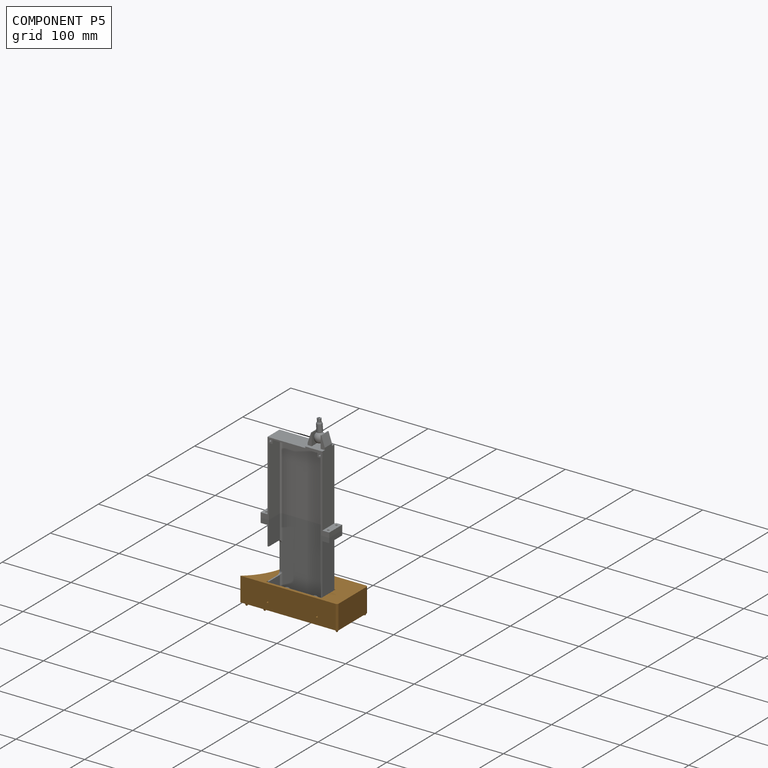
[diagram: component P5 — assembled]
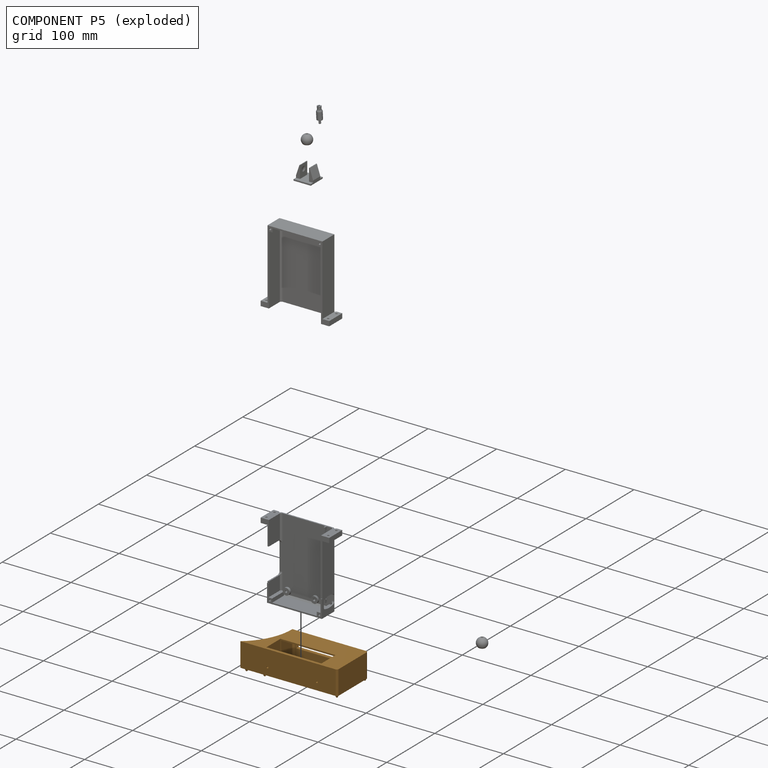
[diagram: component P5 — exploded]
COMPONENT P5 — geometry summary (no construction recipe available for this part):
  bounding box: 142.8 x 66.2 x 38.2 mm
  B-rep topology: 1 solid, 70 faces, 367 edges
  volume: 57349 mm^3 (16% of its bounding box)
Held by: PLANAR mate "Planar 2" to P1; PLANAR mate "Planar 3" to P1; PLANAR mate "Planar 1" to P1.
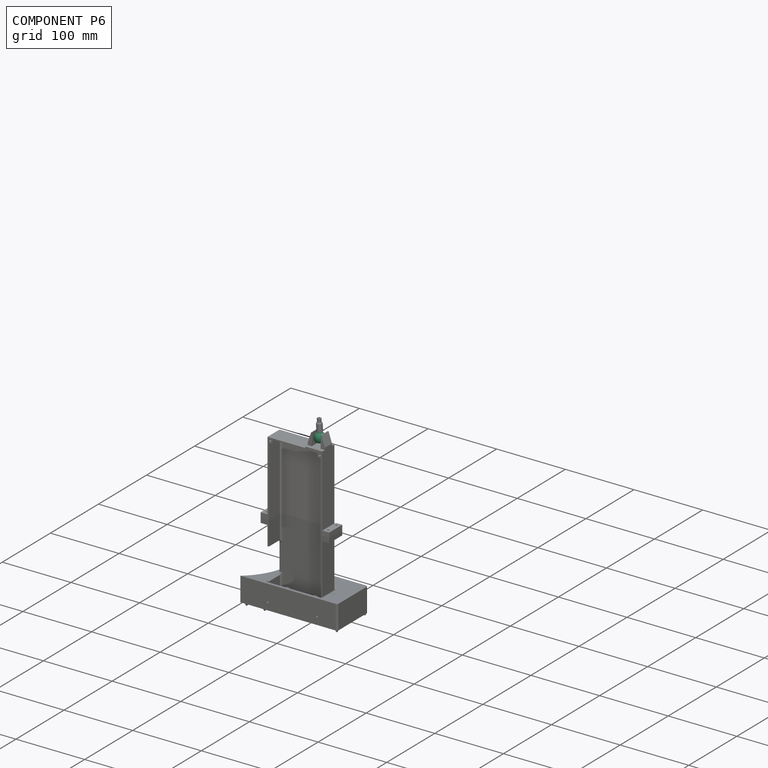
[diagram: component P6 — assembled]
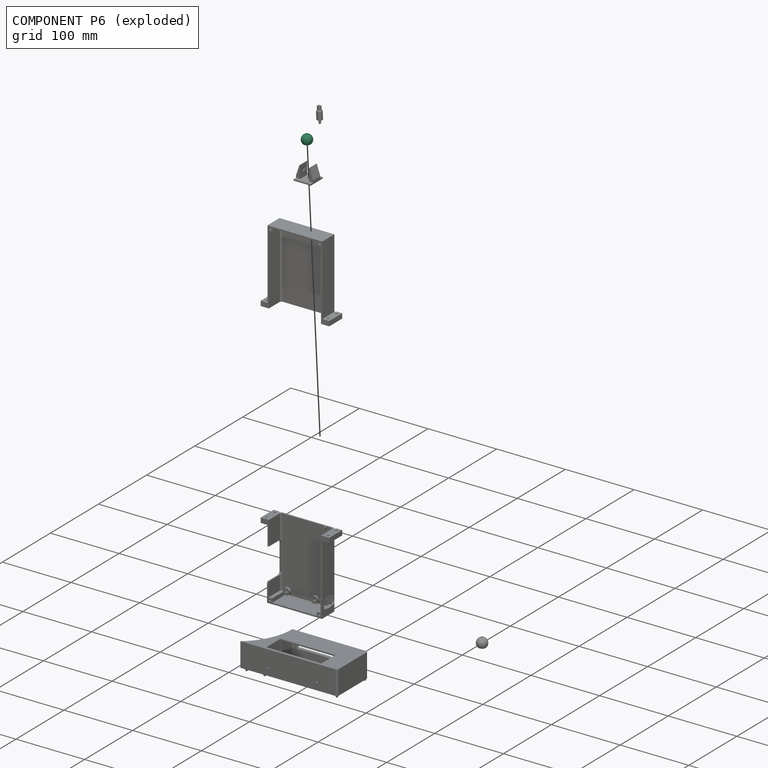
[diagram: component P6 — exploded]
COMPONENT P6 — same part as P2 (CADFS 00714999); its construction recipe is shown at P2.
Held by: REVOLUTE mate "Revolute 1" to P3.
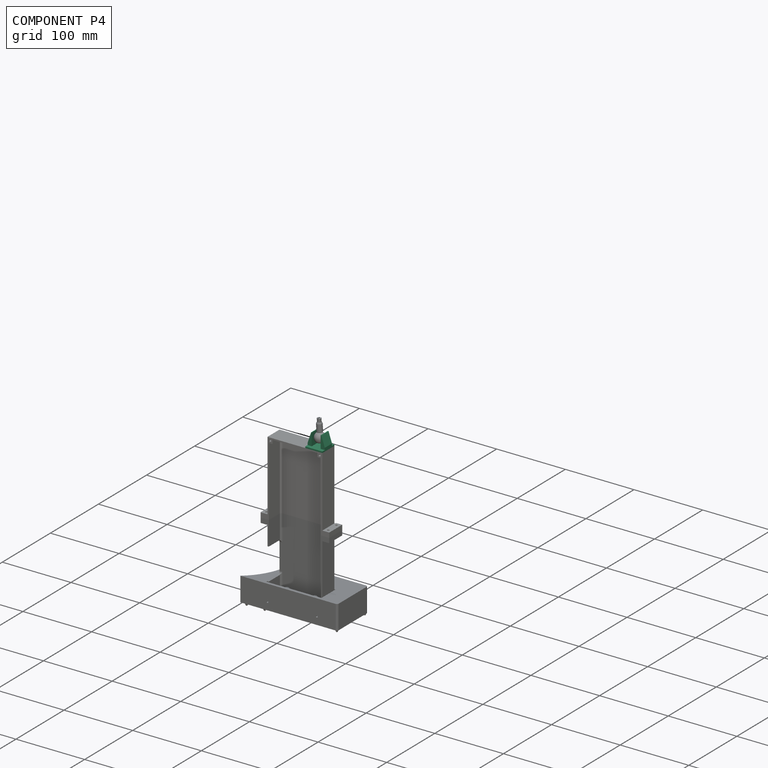
[diagram: component P4 — assembled]
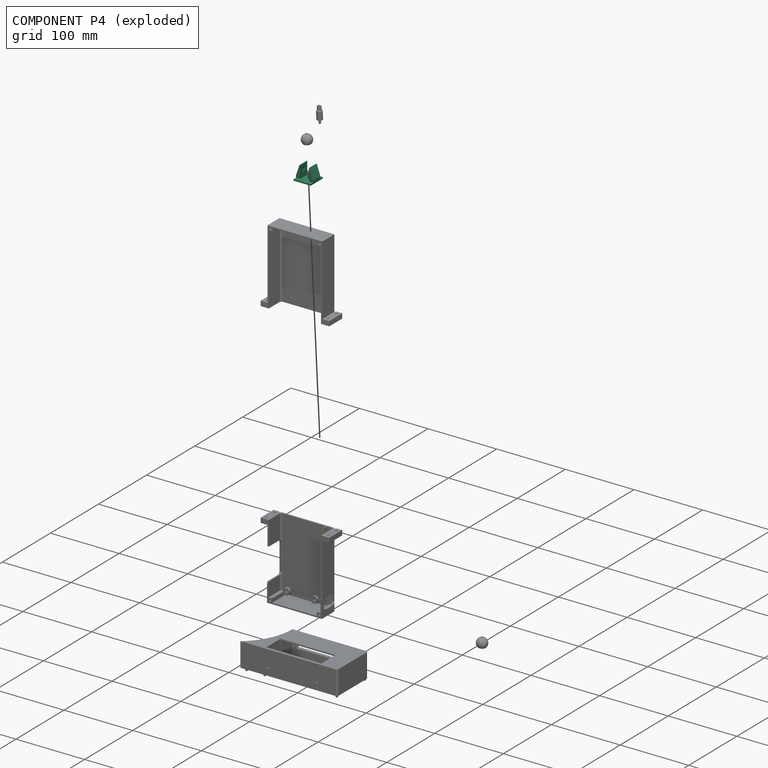
[diagram: component P4 — exploded]
COMPONENT P4 — recipe-attached (CADFS 00715001, mesh-verified: the recipe's output STEP matches this component's geometry to below the mesh-comparison resolution (tessellation chordal tolerance ~0.0609 mm)).
Held by: PLANAR mate "Planar 5" to P0; FASTENED mate "Fastened 2" to P0.
Construction recipe (FeatureScript — the CAD program that rebuilds this solid; sketch coordinates are in the units given by the * unit suffixes, e.g. mm):

FeatureScript 1511;
import(path : "onshape/std/geometry.fs", version : "1511.0");
import(path : "onshape/std/common.fs", version : "1511.0");
const mm = millimeter;
const VERTEX = EntityType.VERTEX;
const EDGE = EntityType.EDGE;
const FACE = EntityType.FACE;
const BODY = EntityType.BODY;
function v(x, y){return vector(x, y);}
function OD(order){return orderDisambiguation(order);}
function OSD(set){return originalSetDisambiguation(set);}
function TD(topology){return topologyDisambiguation(topology);}
function TDD(query){return trueDependencyDisambiguation(query);}
function sQuery(a, b, c) {return sketchEntityQuery(a, b, c);}

annotation { "Feature Type Name" : "Feature", "Feature Type Description" : "" }
export const myFeature = defineFeature(function(context is Context, id is Id, definition is map)
    precondition{}
    {
        {
            var Q0;
            Q0=qCreatedBy(makeId("Top.planeOp"),FACE);
            var sketch = newSketch(context, id + "F0", { "sketchPlane" : qUnion([Q0])});
            skLineSegment(sketch, "E0.bottom", {"start": v(12.5, 12.5) * mm, "end": v(-12.5, 12.5) * mm});
            skLineSegment(sketch, "E0.top", {"start": v(12.5, -12.5) * mm, "end": v(-12.5, -12.5) * mm});
            skLineSegment(sketch, "E0.left", {"start": v(12.5, 12.5) * mm, "end": v(12.5, -12.5) * mm});
            skLineSegment(sketch, "E0.right", {"start": v(-12.5, 12.5) * mm, "end": v(-12.5, -12.5) * mm});
            skPoint(sketch, "E0.middle", {"position": v(0, 0) * mm});
            skSolve(sketch);
        }
        {
            var Q0;
            Q0=makeQuery(id+"F0.imprint","IMPRINT",FACE,{"disambiguationData":[TD([[makeQuery(id+"F0.imprint","IMPRINT",EDGE,{"derivedFrom":sQuery(id+"F0.wireOp",EDGE,"E0.bottom")}),1.0]])]});
            extrude(context, id + "F1", {"entities" : qUnion([Q0]), "depth" : 2 * mm, "offsetDistance" : 25 * mm});
        }
        {
            var Q0;
            Q0=makeQuery(id+"F1.opExtrude","CAP_FACE",FACE,{"disambiguationData":[OSD([sQuery(id+"F0.wireOp",EDGE,"E0.bottom"),sQuery(id+"F0.wireOp",EDGE,"E0.top"),sQuery(id+"F0.wireOp",EDGE,"E0.left"),sQuery(id+"F0.wireOp",EDGE,"E0.right")])],"isStart":false});
            var sketch = newSketch(context, id + "F2", { "sketchPlane" : qUnion([Q0])});
            skPoint(sketch, "E1.middle", {"position": v(0, 0) * mm});
            skLineSegment(sketch, "E2.bottom", {"start": v(7.5, 12.5) * mm, "end": v(-7.5, 12.5) * mm, "construction": true});
            skLineSegment(sketch, "E2.top", {"start": v(7.5, -12.5) * mm, "end": v(-7.5, -12.5) * mm, "construction": true});
            skLineSegment(sketch, "E2.left", {"start": v(7.5, 12.5) * mm, "end": v(7.5, -12.5) * mm, "construction": true});
            skLineSegment(sketch, "E2.right", {"start": v(-7.5, 12.5) * mm, "end": v(-7.5, -12.5) * mm, "construction": true});
            skLineSegment(sketch, "E3.bottom", {"start": v(-7.5, -12.5) * mm, "end": v(7.5, -12.5) * mm});
            skLineSegment(sketch, "E3.top", {"start": v(-7.5, -6.5) * mm, "end": v(7.5, -6.5) * mm});
            skLineSegment(sketch, "E3.left", {"start": v(-7.5, -12.5) * mm, "end": v(-7.5, -6.5) * mm});
            skLineSegment(sketch, "E3.right", {"start": v(7.5, -12.5) * mm, "end": v(7.5, -6.5) * mm});
            skLineSegment(sketch, "E4.bottom", {"start": v(-7.5, 12.5) * mm, "end": v(7.5, 12.5) * mm});
            skLineSegment(sketch, "E4.top", {"start": v(-7.5, 6.5) * mm, "end": v(7.5, 6.5) * mm});
            skLineSegment(sketch, "E4.left", {"start": v(-7.5, 12.5) * mm, "end": v(-7.5, 6.5) * mm});
            skLineSegment(sketch, "E4.right", {"start": v(7.5, 12.5) * mm, "end": v(7.5, 6.5) * mm});
            skSolve(sketch);
        }
        {
            var Q0;
            Q0 = qSketchRegion(id + "F2", true);
            extrude(context, id + "F3", {"entities" : qUnion([Q0]), "operationType" : NewBodyOperationType.ADD, "depth" : 18 * mm, "offsetDistance" : 25 * mm});
        }
        {
            var Q0;
            Q0=makeQuery(id+"F3.opExtrude","SWEPT_FACE",FACE,{"disambiguationData":[OSD([sQuery(id+"F2.wireOp",EDGE,"E4.top")])]});
            var sketch = newSketch(context, id + "F4", { "sketchPlane" : qUnion([Q0])});
            skLineSegment(sketch, "E5.bottom", {"start": v(-7.5, 20) * mm, "end": v(7.5, 20) * mm, "construction": true});
            skLineSegment(sketch, "E5.top", {"start": v(-7.5, 12.5) * mm, "end": v(7.5, 12.5) * mm, "construction": true});
            skLineSegment(sketch, "E5.left", {"start": v(-7.5, 20) * mm, "end": v(-7.5, 12.5) * mm, "construction": true});
            skLineSegment(sketch, "E5.right", {"start": v(7.5, 20) * mm, "end": v(7.5, 12.5) * mm, "construction": true});
            skCircle(sketch, "E6", {"center": v(0, 12.5) * mm, "radius": 3.5 * mm});
            skSolve(sketch);
        }
        {
            var Q0;
            Q0=makeQuery(id+"F4.imprint","IMPRINT",FACE,{"disambiguationData":[TD([[makeQuery(id+"F4.imprint","IMPRINT",EDGE,{"derivedFrom":sQuery(id+"F4.wireOp",EDGE,"E6")}),1.0]])]});
            extrude(context, id + "F5", {"entities" : qUnion([Q0]), "operationType" : NewBodyOperationType.REMOVE, "oppositeDirection" : true, "depth" : 1 * mm, "offsetDistance" : 25 * mm});
        }
        {
            var Q0;
            Q0=makeQuery(id+"F3.opExtrude","SWEPT_FACE",FACE,{"disambiguationData":[OSD([sQuery(id+"F2.wireOp",EDGE,"E3.top")])]});
            var sketch = newSketch(context, id + "F6", { "sketchPlane" : qUnion([Q0])});
            skLineSegment(sketch, "E7.bottom", {"start": v(-7.5, 20) * mm, "end": v(7.5, 20) * mm, "construction": true});
            skLineSegment(sketch, "E7.top", {"start": v(-7.5, 12.5) * mm, "end": v(7.5, 12.5) * mm, "construction": true});
            skLineSegment(sketch, "E7.left", {"start": v(-7.5, 20) * mm, "end": v(-7.5, 12.5) * mm, "construction": true});
            skLineSegment(sketch, "E7.right", {"start": v(7.5, 20) * mm, "end": v(7.5, 12.5) * mm, "construction": true});
            skCircle(sketch, "E8", {"center": v(0, 12.5) * mm, "radius": 3.5 * mm});
            skSolve(sketch);
        }
        {
            var Q0;
            Q0=makeQuery(id+"F6.imprint","IMPRINT",FACE,{"disambiguationData":[TD([[makeQuery(id+"F6.imprint","IMPRINT",EDGE,{"derivedFrom":sQuery(id+"F6.wireOp",EDGE,"E8")}),1.0]])]});
            extrude(context, id + "F7", {"entities" : qUnion([Q0]), "operationType" : NewBodyOperationType.REMOVE, "oppositeDirection" : true, "depth" : 1 * mm, "offsetDistance" : 25 * mm});
        }
        {
            var Q0;
            Q0=makeQuery(id+"F5.boolean.opBoolean","COPY",EDGE,{"derivedFrom":makeQuery(id+"F5.opExtrude","CAP_EDGE",EDGE,{"disambiguationData":[OSD([sQuery(id+"F4.wireOp",EDGE,"E6")])],"isStart":false})});
            var Q1;
            Q1=makeQuery(id+"F7.boolean.opBoolean","COPY",EDGE,{"derivedFrom":makeQuery(id+"F7.opExtrude","CAP_EDGE",EDGE,{"disambiguationData":[OSD([sQuery(id+"F6.wireOp",EDGE,"E8")])],"isStart":false})});
            fillet(context, id + "F8", {"entities" : qUnion([Q0, Q1]), "radius" : 6 * mm, "tangentPropagation" : true, "rho" : 0.5, "crossSection" : FilletCrossSection.CONIC, "allowEdgeOverflow" : false});
        }
        {
            var Q0;
            Q0=makeQuery(id+"F3.opExtrude","CAP_EDGE",EDGE,{"disambiguationData":[OSD([sQuery(id+"F2.wireOp",EDGE,"E3.bottom")])],"isStart":false});
            chamfer(context, id + "F9", {"entities" : qUnion([Q0]), "chamferType" : ChamferType.TWO_OFFSETS, "width1" : 15 * mm, "oppositeDirection" : false, "width2" : 5 * mm, "tangentPropagation" : true});
        }
        {
            var Q0;
            Q0=makeQuery(id+"F3.opExtrude","CAP_EDGE",EDGE,{"disambiguationData":[OSD([sQuery(id+"F2.wireOp",EDGE,"E4.bottom")])],"isStart":false});
            chamfer(context, id + "F10", {"entities" : qUnion([Q0]), "chamferType" : ChamferType.TWO_OFFSETS, "width1" : 5 * mm, "oppositeDirection" : false, "width2" : 15 * mm, "tangentPropagation" : true});
        }
    });
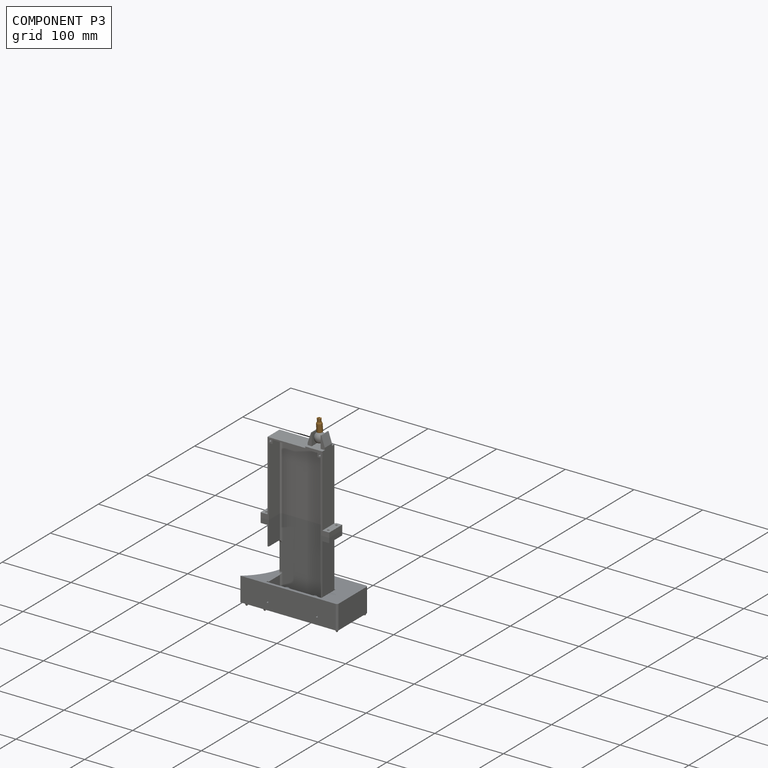
[diagram: component P3 — assembled]
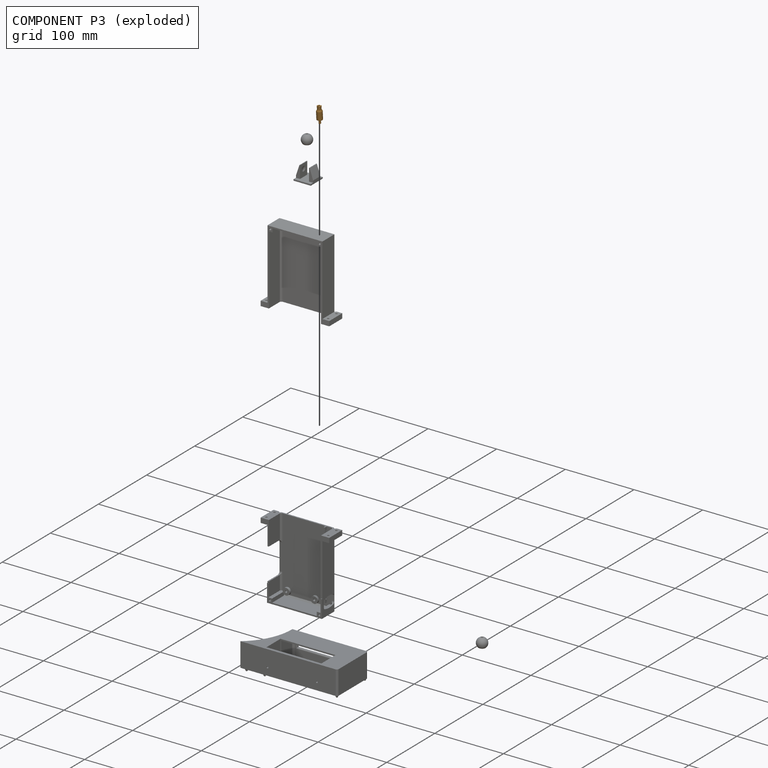
[diagram: component P3 — exploded]
COMPONENT P3 — geometry summary (no construction recipe available for this part):
  bounding box: 23.0 x 10.0 x 10.0 mm
  B-rep topology: 1 solid, 21 faces, 100 edges
  volume: 752 mm^3 (32% of its bounding box)
  symmetry: 2-fold rotationally symmetric about the z axis; mirror-symmetric across its x mid-plane, y mid-plane
Held by: REVOLUTE mate "Revolute 1" to P6.
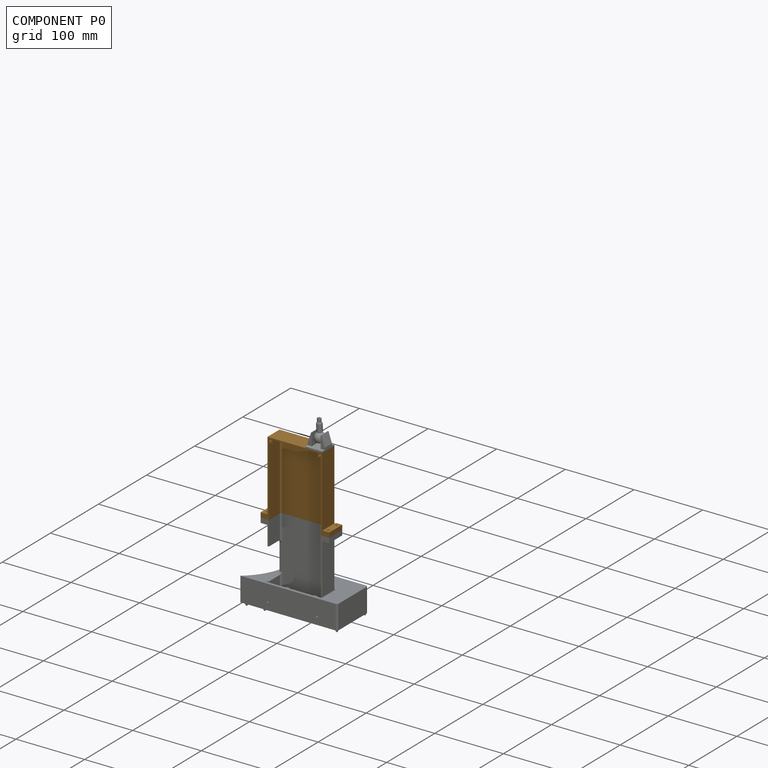
[diagram: component P0 — assembled]
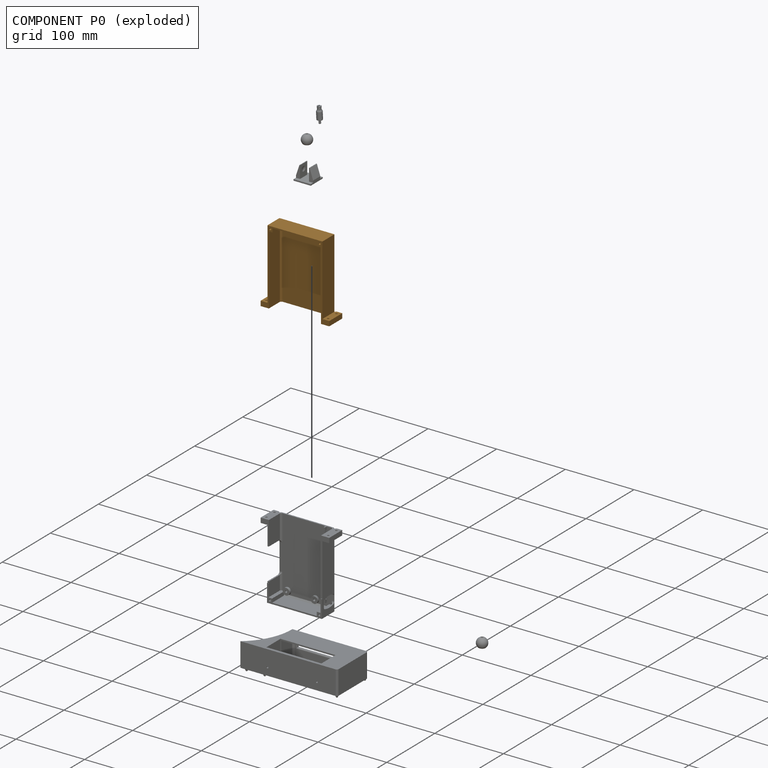
[diagram: component P0 — exploded]
COMPONENT P0 — geometry summary (no construction recipe available for this part):
  bounding box: 109.0 x 100.0 x 27.0 mm
  B-rep topology: 1 solid, 90 faces, 516 edges
  volume: 38014 mm^3 (13% of its bounding box)
Held by: PLANAR mate "Planar 4" to P1; PLANAR mate "Planar 5" to P4; FASTENED mate "Fastened 1" to P1; FASTENED mate "Fastened 2" to P4.
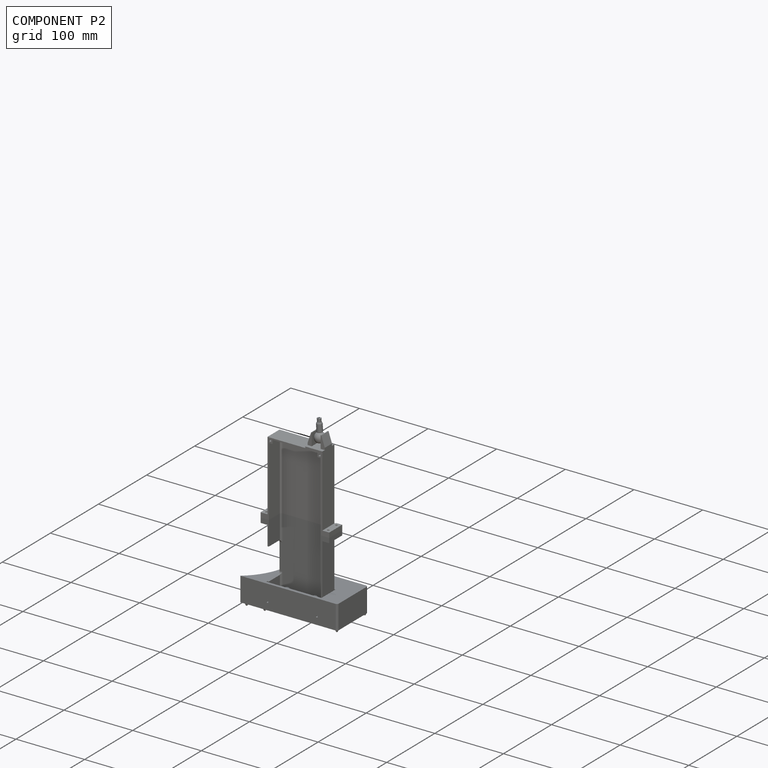
[diagram: component P2 — assembled]
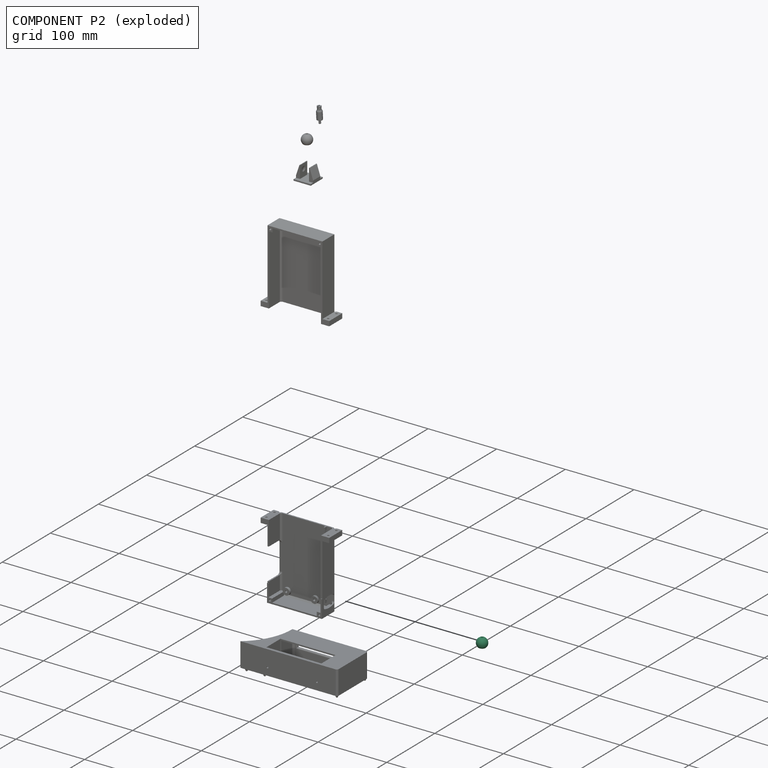
[diagram: component P2 — exploded]
COMPONENT P2 — recipe-attached (CADFS 00714999, mesh-verified: the recipe's output STEP matches this component's geometry to below the mesh-comparison resolution (tessellation chordal tolerance ~0.037 mm)).
Held by: no mates (free).
Construction recipe (FeatureScript — the CAD program that rebuilds this solid; sketch coordinates are in the units given by the * unit suffixes, e.g. mm):

FeatureScript 1511;
import(path : "onshape/std/geometry.fs", version : "1511.0");
import(path : "onshape/std/common.fs", version : "1511.0");
const mm = millimeter;
const VERTEX = EntityType.VERTEX;
const EDGE = EntityType.EDGE;
const FACE = EntityType.FACE;
const BODY = EntityType.BODY;
function v(x, y){return vector(x, y);}
function OD(order){return orderDisambiguation(order);}
function OSD(set){return originalSetDisambiguation(set);}
function TD(topology){return topologyDisambiguation(topology);}
function TDD(query){return trueDependencyDisambiguation(query);}
function sQuery(a, b, c) {return sketchEntityQuery(a, b, c);}

annotation { "Feature Type Name" : "Feature", "Feature Type Description" : "" }
export const myFeature = defineFeature(function(context is Context, id is Id, definition is map)
    precondition{}
    {
        {
            var Q0;
            Q0=qCreatedBy(makeId("Front.planeOp"),FACE);
            var sketch = newSketch(context, id + "F0", { "sketchPlane" : qUnion([Q0])});
            skLineSegment(sketch, "E0.bottom", {"start": v(0, 0) * mm, "end": v(7.5, 0) * mm, "construction": true});
            skLineSegment(sketch, "E0.top", {"start": v(1.5, 13) * mm, "end": v(7.5, 13) * mm, "construction": true});
            skLineSegment(sketch, "E0.left", {"start": v(0, 0) * mm, "end": v(0, 8) * mm, "construction": true});
            skLineSegment(sketch, "E0.right", {"start": v(7.5, 0) * mm, "end": v(7.5, 13) * mm, "construction": true});
            skLineSegment(sketch, "E1", {"start": v(0, 0) * mm, "end": v(5, 0) * mm, "construction": true});
            skArc(sketch, "E2", {"start": v(5, 0) * mm, "mid": v(7.2, 7.5) * mm, "end": v(1.5, 12.85) * mm});
            skLineSegment(sketch, "E3", {"start": v(5, 0) * mm, "end": v(0, 0) * mm});
            skLineSegment(sketch, "E4", {"start": v(0, 8) * mm, "end": v(0, 0) * mm});
            skLineSegment(sketch, "E5.top", {"start": v(0, 8) * mm, "end": v(1.5, 8) * mm});
            skLineSegment(sketch, "E5.right", {"start": v(1.5, 12.85) * mm, "end": v(1.5, 8) * mm});
            skPoint(sketch, "E6.orphan", {"position": v(0, 13) * mm});
            skSolve(sketch);
        }
        {
            var Q0;
            Q0=makeQuery(id+"F0.imprint","IMPRINT",FACE,{"disambiguationData":[TD([[makeQuery(id+"F0.imprint","IMPRINT",EDGE,{"derivedFrom":sQuery(id+"F0.wireOp",EDGE,"E2")}),1.0]])]});
            var Q1;
            Q1=sQuery(id+"F0.wireOp",EDGE,"E4");
            revolve(context, id + "F1", {"surfaceOperationType" : NewSurfaceOperationType.NEW, "entities" : qUnion([Q0]), "axis" : qUnion([Q1]), "revolveType" : RevolveType.FULL});
        }
    });
PROVENANCE & LICENSES
Assembly (occurrences, transforms, mates, per-part STEP geometry): AutoMate dataset, Zenodo record 7776208, CC0.
Construction recipes: CADFS (HuggingFace VladPyatov/CADFS, CC-BY-4.0, layered over the ABC dataset), FeatureScript reconstruction programs keyed by ABC model id.
Join: ABC meta listings map ABC model id -> Onshape documentId; within a shared document, parts are matched by geometric signature (bounding-box dims + volume at 0.1% relative tolerance, exact B-rep face/solid counts).
Verification: 4 of this assembly's 7 components carry a recipe attachment, and every attachment is mesh-verified: the CADFS STEP and the AutoMate member STEP were compared as meshes in their shared local frame (symmetric sampled-point-to-mesh distance); worst across the 4 attachments: below the mesh-comparison resolution (tessellation chordal tolerance ~0.226 mm) on a 151 mm part.
Renders: orthographic iso camera (az 35 / el 25); the floor grid conveys scale (grid pitch printed in each image; no ruler). In the exploded view each component is displaced by its stored offset vector: the offsets alone carry the explosion direction (mate normal/axis signs are not orientation cues and do not encode it), and separation distances are assigned per mate-chain, not proportionally to assembly-order depth.
